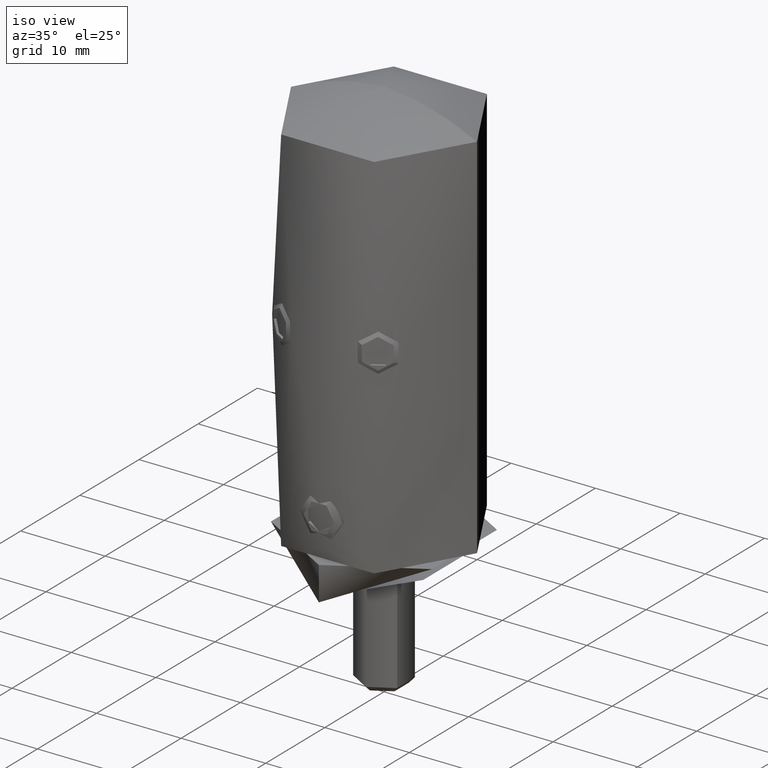
[diagram: clean part render]
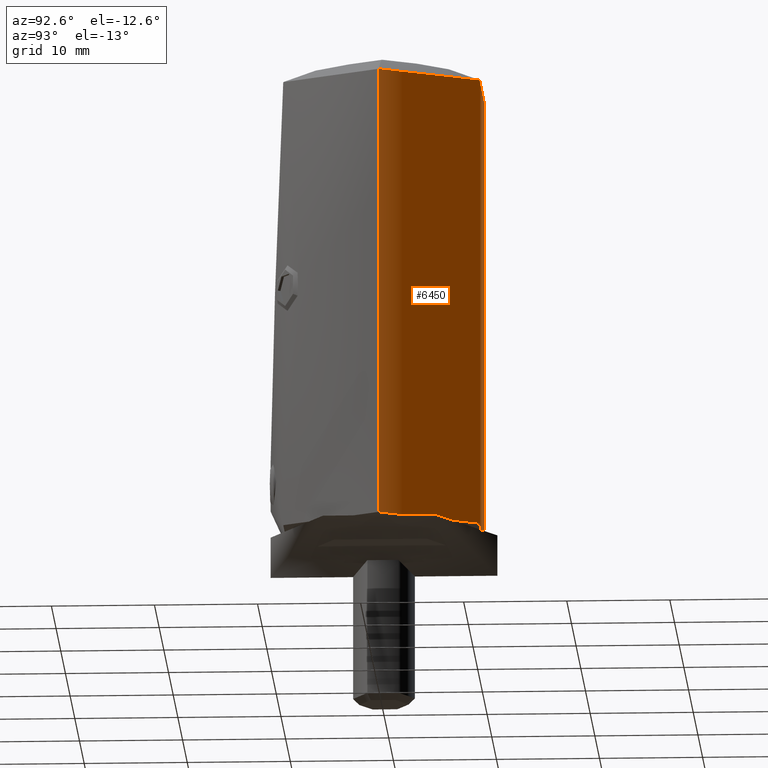
[diagram: tour spotlight — one face highlighted and labeled with its STEP entity id]
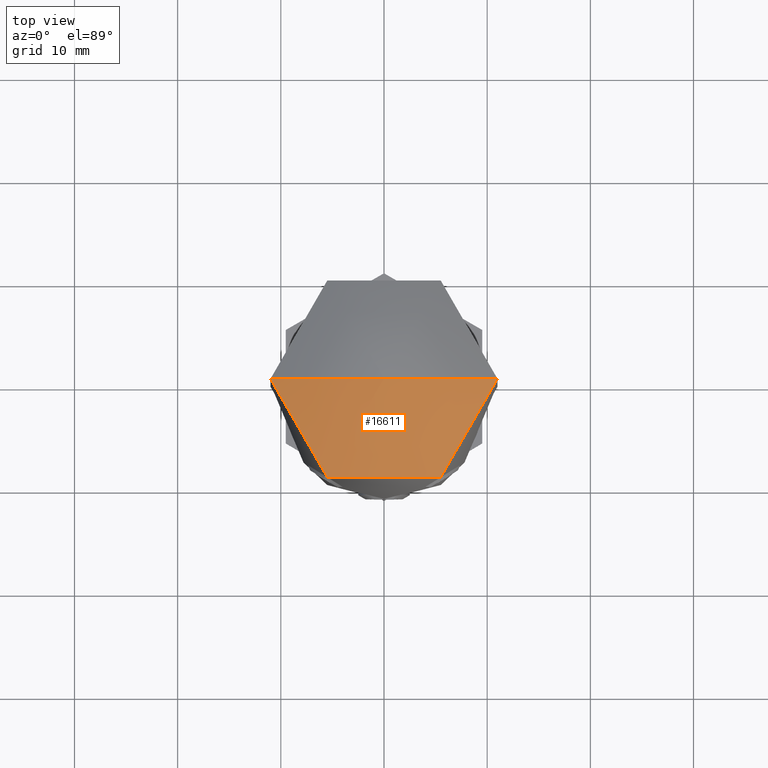
[diagram: tour spotlight — one face highlighted and labeled with its STEP entity id]
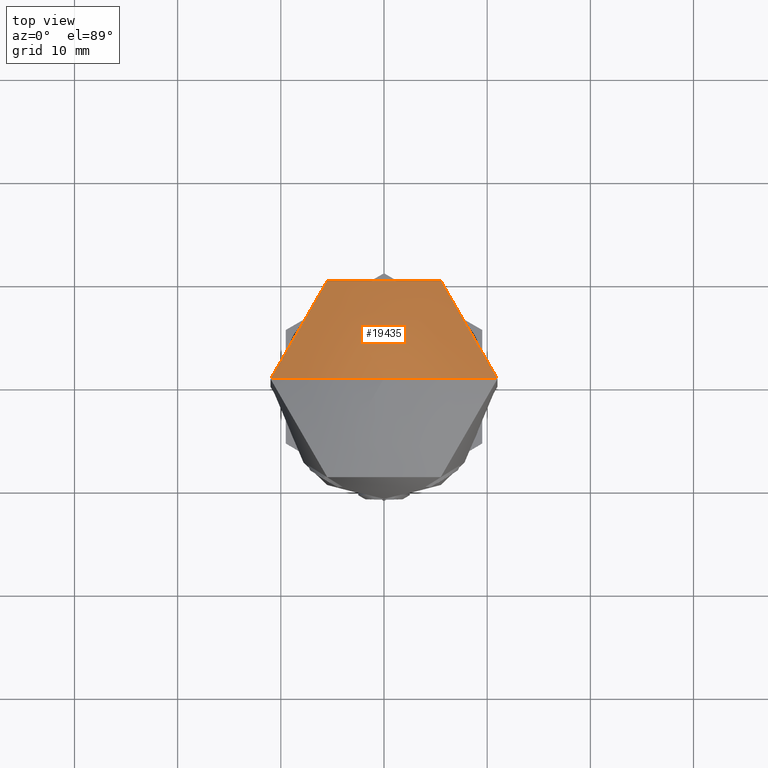
[diagram: tour spotlight — one face highlighted and labeled with its STEP entity id]
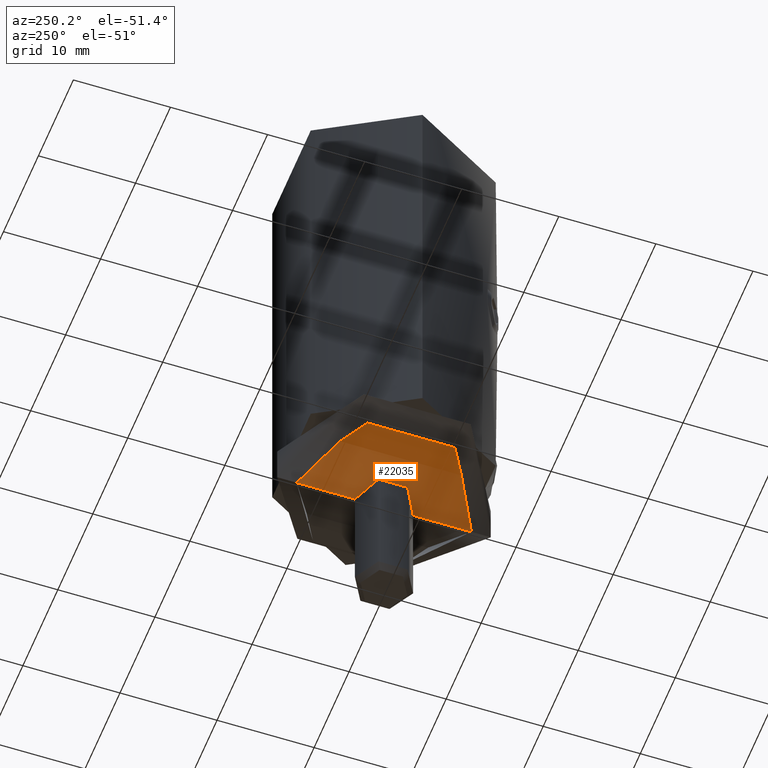
[diagram: tour spotlight — one face highlighted and labeled with its STEP entity id]
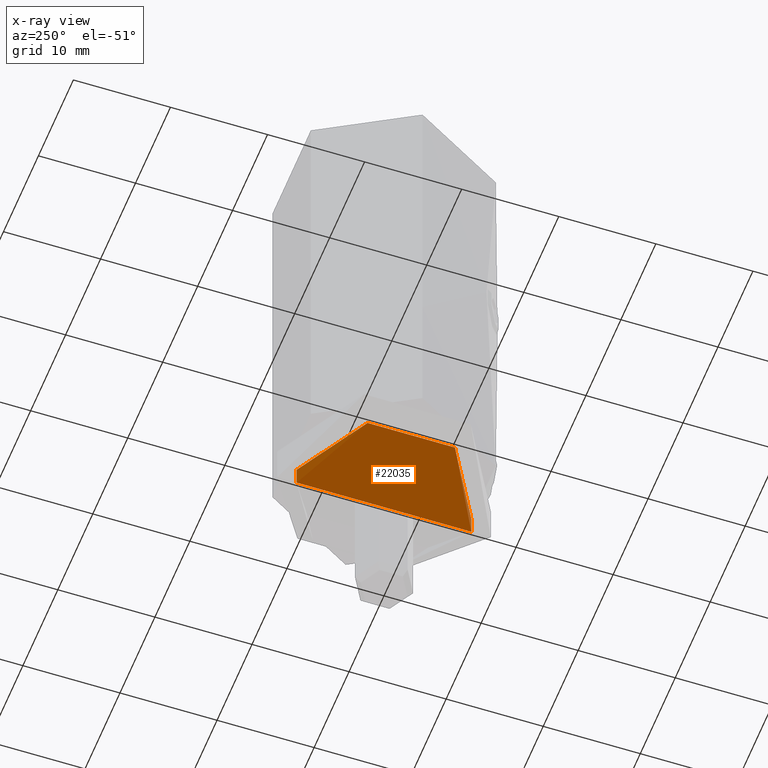
[diagram: x-ray of the same camera — body ghosted, this tour face saturated]
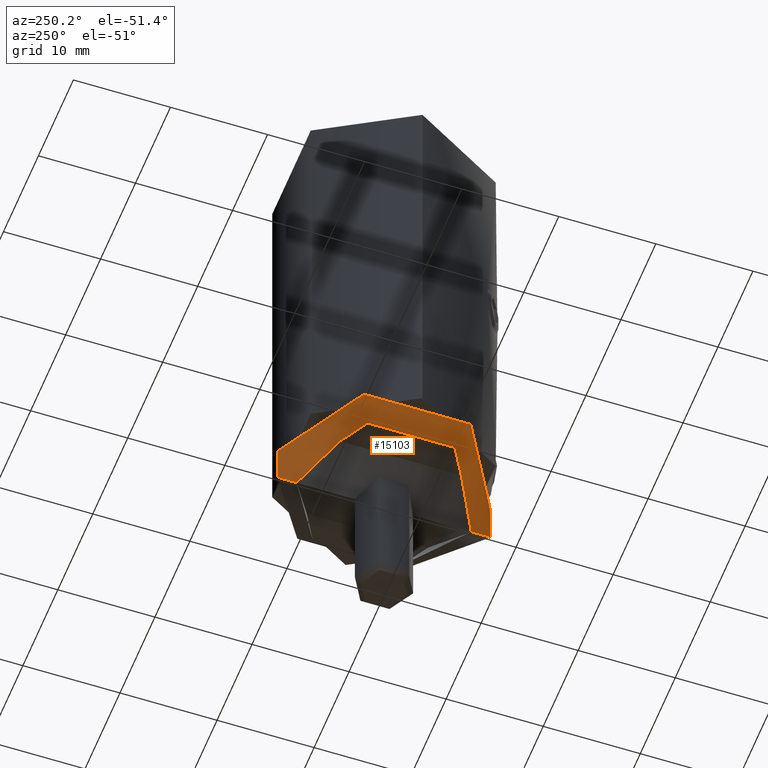
[diagram: tour spotlight — one face highlighted and labeled with its STEP entity id]
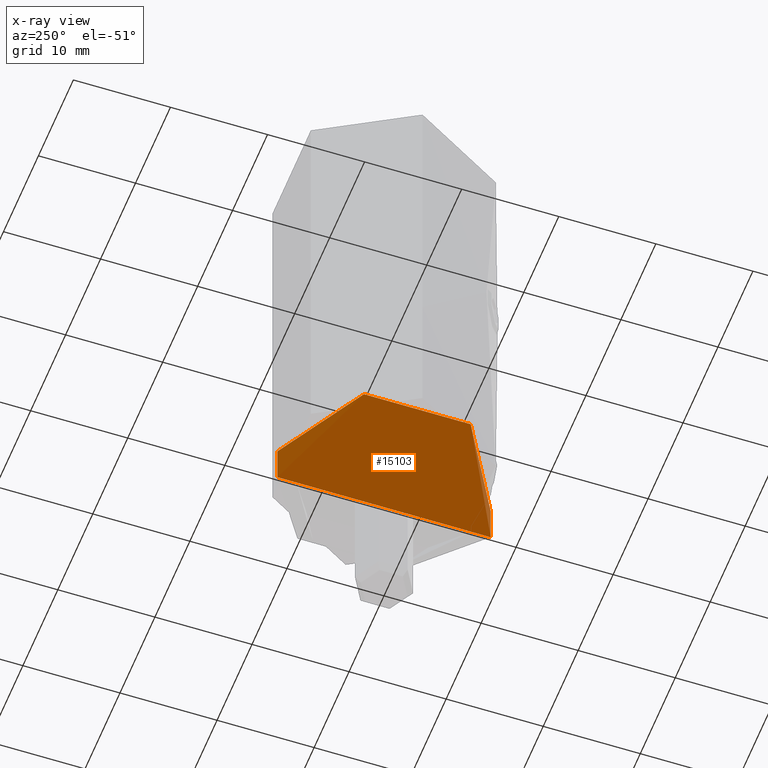
[diagram: x-ray of the same camera — body ghosted, this tour face saturated]
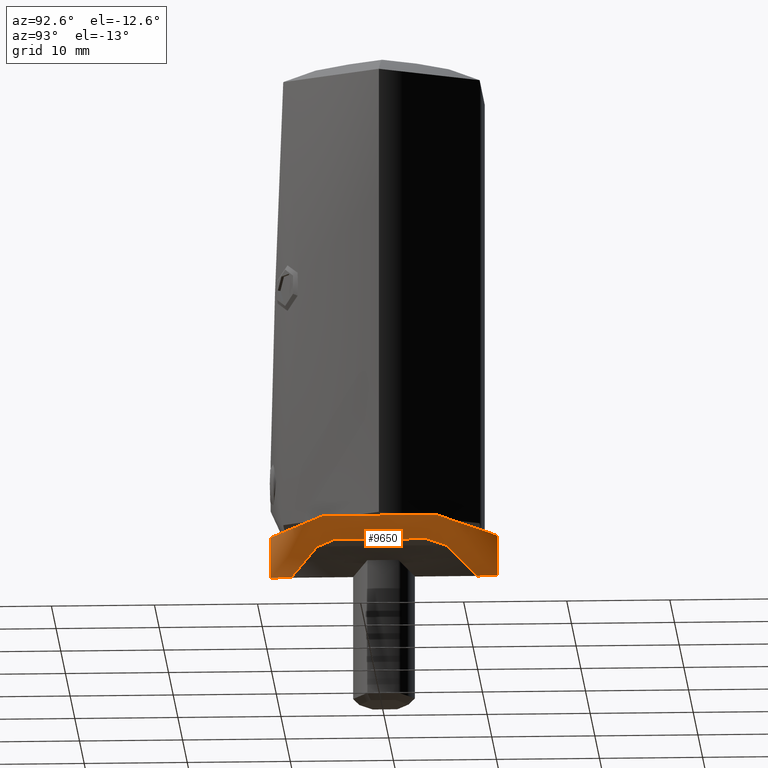
[diagram: tour spotlight — one face highlighted and labeled with its STEP entity id]
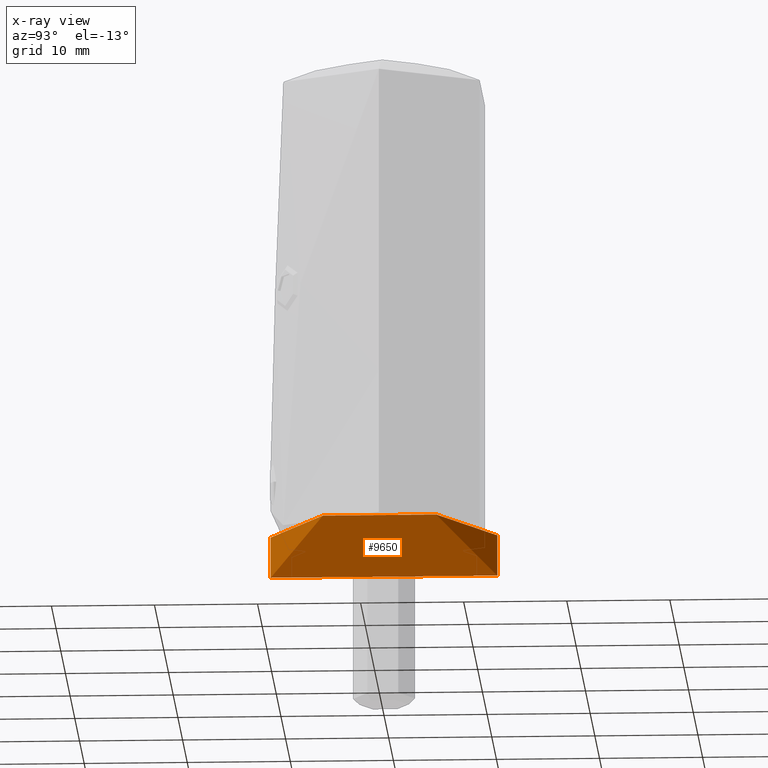
[diagram: x-ray of the same camera — body ghosted, this tour face saturated]
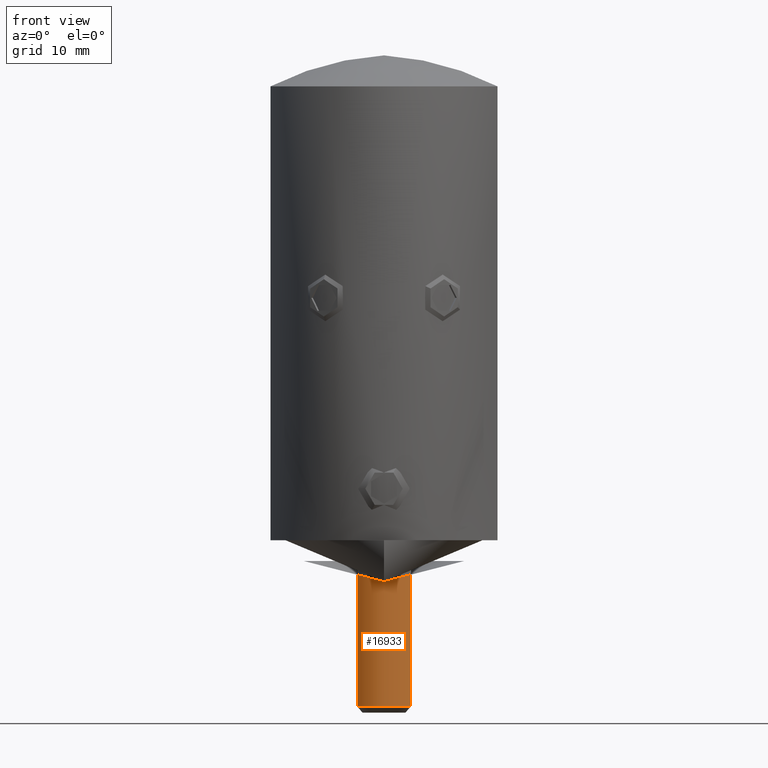
[diagram: tour spotlight — one face highlighted and labeled with its STEP entity id]
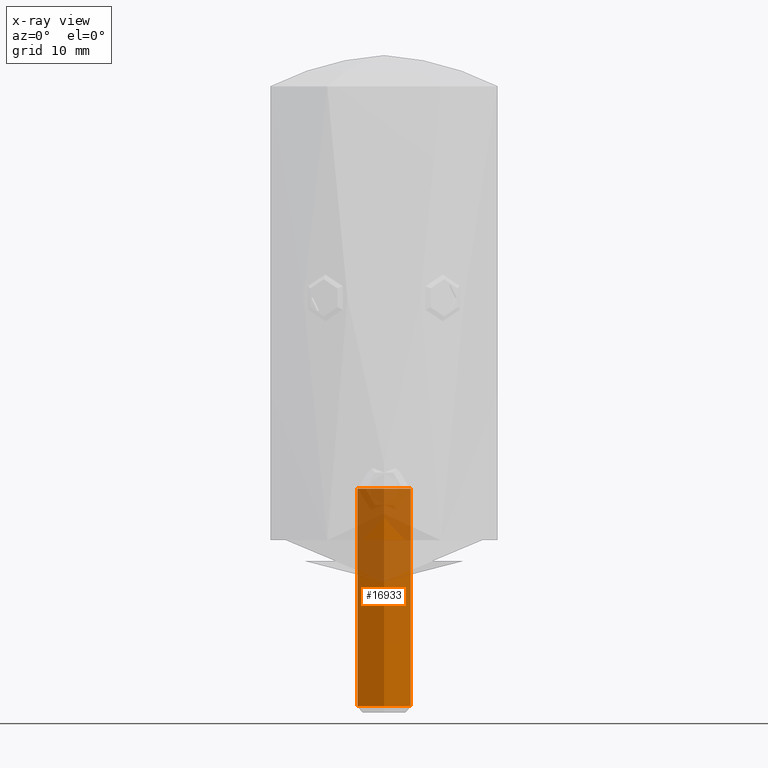
[diagram: x-ray of the same camera — body ghosted, this tour face saturated]
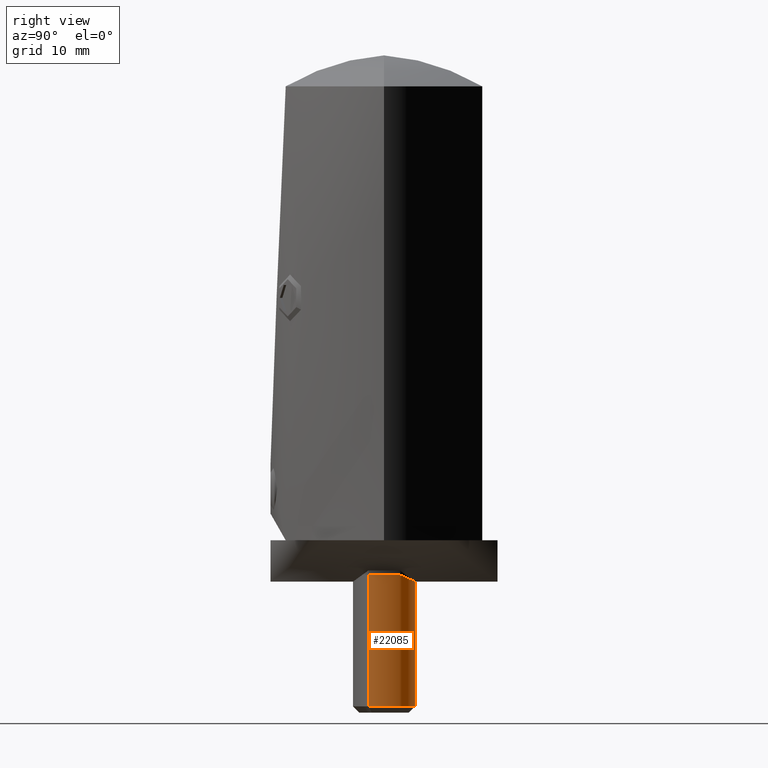
[diagram: tour spotlight — one face highlighted and labeled with its STEP entity id]
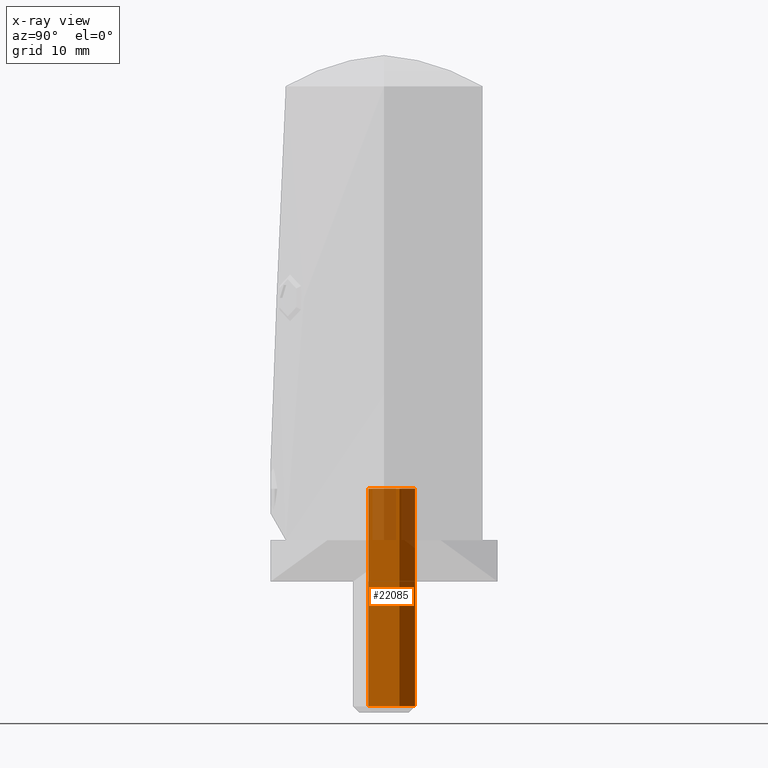
[diagram: x-ray of the same camera — body ghosted, this tour face saturated]
A machine part: a face-by-face anatomy tour. The part has 388 B-rep faces; the first image is the clean iso view, then the 8 largest visible faces are spotlighted one at a time (largest first), each with its STEP entity span.

Face 1 — auxiliary view, entity #6450. In plain terms, the highlighted cylindrical surface (partial cylindrical patch) has radius 11 mm, axis along (0, 0, 1).
Definition (entity closure, byte-faithful):
#122 = VECTOR ( 'NONE', #1411, 1000.000000000000000 ) ;
#185 = CARTESIAN_POINT ( 'NONE',  ( 0.000000000000000000, 0.000000000000000000, 0.000000000000000000 ) ) ;
#583 = AXIS2_PLACEMENT_3D ( 'NONE', #185, #18202, #8185 ) ;
#852 = CARTESIAN_POINT ( 'NONE',  ( 11.00000000000000000, 0.000000000000000000, 0.000000000000000000 ) ) ;
#1027 = EDGE_CURVE ( 'NONE', #9786, #12698, #20899, .T. ) ;
#1116 = LINE ( 'NONE', #7931, #6016 ) ;
#1151 = CARTESIAN_POINT ( 'NONE',  ( 9.276586281824352298, 5.912086988701064527, 26.68991559181272066 ) ) ;
#1221 = CARTESIAN_POINT ( 'NONE',  ( 10.19190643202290403, 4.145583814347573615, 17.23581035534738248 ) ) ;
#1335 = CARTESIAN_POINT ( 'NONE',  ( -10.63235953451128601, 2.826142311900730508, 15.49017556132866424 ) ) ;
#1362 = CARTESIAN_POINT ( 'NONE',  ( 9.169022805507463403, 6.077224059141697943, 23.72744714941844535 ) ) ;
#1411 = DIRECTION ( 'NONE',  ( -0.000000000000000000, -0.000000000000000000, 1.000000000000000000 ) ) ;
#1441 = CARTESIAN_POINT ( 'NONE',  ( 10.93454373632697774, 1.219124606259233801, 14.37928282664537072 ) ) ;
#1457 = LINE ( 'NONE', #18378, #15074 ) ;
#1486 = CARTESIAN_POINT ( 'NONE',  ( -9.995745178423522503, 4.598577528994651331, 18.09011867401516582 ) ) ;
#1555 = CARTESIAN_POINT ( 'NONE',  ( -9.667618367043559147, 5.248993232710271961, 28.51127229857968715 ) ) ;
#2116 = CARTESIAN_POINT ( 'NONE',  ( 0.000000000000000000, 0.000000000000000000, 47.00000000000000000 ) ) ;
#2395 = EDGE_LOOP ( 'NONE', ( #5522, #17896, #3724, #16708, #16062, #20153, #4001, #17229 ) ) ;
#2848 = CARTESIAN_POINT ( 'NONE',  ( -10.93489635769100587, 1.216236221673740125, 14.37801581980705024 ) ) ;
#2855 = CARTESIAN_POINT ( 'NONE',  ( 10.99999999999999645, -1.613032863370915042E-15, 14.14600281952403371 ) ) ;
#2878 = CARTESIAN_POINT ( 'NONE',  ( 9.937150968510632509, 4.720449298127608273, 29.30968321722767556 ) ) ;
#2947 = CARTESIAN_POINT ( 'NONE',  ( 10.68044981376455027, 2.641693695686940568, 30.87581037398781802 ) ) ;
#3040 = EDGE_CURVE ( 'NONE', #16042, #17736, #3161, .T. ) ;
#3065 = CARTESIAN_POINT ( 'NONE',  ( -10.44101067740119504, 3.465226348147305124, 16.22774114665358880 ) ) ;
#3161 = CIRCLE ( 'NONE', #6873, 10.99999999999999289 ) ;
#3279 = CARTESIAN_POINT ( 'NONE',  ( -9.631011627530943642, 5.316813198380812011, 19.89080091663919347 ) ) ;
#3383 = CARTESIAN_POINT ( 'NONE',  ( 10.99999999999999645, -6.157719887952269557E-18, 31.39940828047582144 ) ) ;
#3527 = VERTEX_POINT ( 'NONE', #11686 ) ;
#3724 = ORIENTED_EDGE ( 'NONE', *, *, #14783, .T. ) ;
#4001 = ORIENTED_EDGE ( 'NONE', *, *, #16088, .F. ) ;
#4445 = FACE_OUTER_BOUND ( 'NONE', #2395, .T. ) ;
#4694 = CARTESIAN_POINT ( 'NONE',  ( 10.73363410085024228, 2.417583941322506647, 30.96706970414824056 ) ) ;
#4741 = CARTESIAN_POINT ( 'NONE',  ( -10.99999999999999467, 0.2478373475758859912, 14.14600281952402483 ) ) ;
#4769 = CARTESIAN_POINT ( 'NONE',  ( 10.95879317033269906, 0.9815245868461854872, 14.29267380481936911 ) ) ;
#4791 = EDGE_CURVE ( 'NONE', #9786, #5450, #12141, .T. ) ;
#4817 = CARTESIAN_POINT ( 'NONE',  ( -9.161691856020862446, 6.088012139515935672, 25.21152445994013647 ) ) ;
#4844 = CARTESIAN_POINT ( 'NONE',  ( 9.180302095915839899, 6.060518049954424669, 25.71424540636342826 ) ) ;
#5040 = CARTESIAN_POINT ( 'NONE',  ( -10.93266799829689440, 1.239499988441321365, 31.29412717969402991 ) ) ;
#5108 = CARTESIAN_POINT ( 'NONE',  ( -10.29346247027996597, 3.890323998195837518, 16.81608004023518887 ) ) ;
#5450 = VERTEX_POINT ( 'NONE', #2855 ) ;
#5522 = ORIENTED_EDGE ( 'NONE', *, *, #1027, .T. ) ;
#5668 = AXIS2_PLACEMENT_3D ( 'NONE', #2116, #12445, #17822 ) ;
#6016 = VECTOR ( 'NONE', #7793, 1000.000000000000000 ) ;
#6336 = DIRECTION ( 'NONE',  ( -0.000000000000000000, -0.000000000000000000, 1.000000000000000000 ) ) ;
#6365 = CARTESIAN_POINT ( 'NONE',  ( -10.84032913580385760, 1.878513215223658550, 14.71939697732687868 ) ) ;
#6389 = B_SPLINE_CURVE_WITH_KNOTS ( 'NONE', 3,
 ( #15201, #4741, #16742, #20041, #2848, #15054, #6365, #17175, #18762, #1335, #13626, #8451, #3065, #5108, #10087, #1486, #22457, #18916, #3279, #8534, #6583, #11937, #18836, #15501, #20640, #22171, #4817, #13553, #10236, #22379, #18980, #17249, #12010, #1555, #6724, #13694, #20496, #22238, #11867, #15357, #20569, #20417, #13772, #5040, #10163, #6793, #17036, #20717 ),
 .UNSPECIFIED., .F., .F.,
 ( 4, 2, 2, 2, 2, 2, 2, 2, 2, 2, 2, 2, 2, 2, 2, 2, 2, 2, 2, 2, 2, 2, 2, 4 ),
 ( 0.02373305353298711326, 0.02447535600702940850, 0.02521765848107170721, 0.02595996095511400245, 0.02670226342915629769, 0.02744456590319859293, 0.02818686837724089164, 0.02967147332532548559, 0.03115607827341007607, 0.03264068322149467349, 0.03412528816957926397, 0.03560989311766386139, 0.03709449806574845188, 0.03783680053979075752, 0.03857910301383305623, 0.04006370796191766059, 0.04080601043595996624, 0.04154831291000227189, 0.04303291785808689013, 0.04377522033212920272, 0.04451752280617152224, 0.04600212775425614742, 0.04674443022829846694, 0.04748673270234078647 ),
 .UNSPECIFIED. ) ;
#6396 = CARTESIAN_POINT ( 'NONE',  ( 9.350936937472786425, 5.796166265188768207, 27.17605783751555037 ) ) ;
#6450 = ADVANCED_FACE ( 'NONE', ( #4445 ), #21047, .T. ) ;
#6469 = CARTESIAN_POINT ( 'NONE',  ( 9.865857427622449549, 4.866926039614834387, 29.11769652056424817 ) ) ;
#6583 = CARTESIAN_POINT ( 'NONE',  ( -9.403972630176102854, 5.707726091161572590, 21.29312315735162642 ) ) ;
#6724 = CARTESIAN_POINT ( 'NONE',  ( -9.731269890558166935, 5.130702321242056385, 28.71869723149263720 ) ) ;
#6793 = CARTESIAN_POINT ( 'NONE',  ( -10.99144955070030072, 0.4993093784154168380, 31.38620898365419976 ) ) ;
#6873 = AXIS2_PLACEMENT_3D ( 'NONE', #15093, #6336, #11457 ) ;
#6982 = CARTESIAN_POINT ( 'NONE',  ( 10.99999999999999467, 0.4996091848325773244, 31.39940828047583210 ) ) ;
#7793 = DIRECTION ( 'NONE',  ( -0.000000000000000000, -0.000000000000000000, 1.000000000000000000 ) ) ;
#7862 = CARTESIAN_POINT ( 'NONE',  ( 10.99999999999999645, -6.157719887952269557E-18, 31.39940828047582144 ) ) ;
#7931 = CARTESIAN_POINT ( 'NONE',  ( -10.99999999999999645, 1.347111479062088010E-15, 47.00000000000000000 ) ) ;
#8110 = CARTESIAN_POINT ( 'NONE',  ( 10.15198952329511606, 4.239602061929558907, 29.83253419508602633 ) ) ;
#8185 = DIRECTION ( 'NONE',  ( 1.000000000000000000, 0.000000000000000000, 0.000000000000000000 ) ) ;
#8260 = CARTESIAN_POINT ( 'NONE',  ( 10.72066440796315767, 2.470073037757269940, 15.15924680959760273 ) ) ;
#8451 = CARTESIAN_POINT ( 'NONE',  ( -10.48974706952189884, 3.315559160206889455, 16.03702005913170936 ) ) ;
#8534 = CARTESIAN_POINT ( 'NONE',  ( -9.474578436458164887, 5.590818455961032107, 20.82068631534885839 ) ) ;
#8562 = CARTESIAN_POINT ( 'NONE',  ( 10.96611358357113275, 0.9909392377880402725, 31.34776871340466542 ) ) ;
#9235 = LINE ( 'NONE', #21724, #11732 ) ;
#9252 = DIRECTION ( 'NONE',  ( -0.000000000000000000, -0.000000000000000000, 1.000000000000000000 ) ) ;
#9441 = CARTESIAN_POINT ( 'NONE',  ( 10.99999999999999289, 0.000000000000000000, 44.00000000000000000 ) ) ;
#9786 = VERTEX_POINT ( 'NONE', #852 ) ;
#10050 = CARTESIAN_POINT ( 'NONE',  ( 9.717539187263652067, 5.158495255006235070, 19.42986083207344095 ) ) ;
#10087 = CARTESIAN_POINT ( 'NONE',  ( -10.19334211656566680, 4.142174966946750914, 17.22965697093777848 ) ) ;
#10163 = CARTESIAN_POINT ( 'NONE',  ( -10.95786264964114132, 0.9932367454756317882, 31.33369241825576523 ) ) ;
#10236 = CARTESIAN_POINT ( 'NONE',  ( -9.204154736256592528, 6.023743178888258498, 25.95545286772080473 ) ) ;
#10945 = VERTEX_POINT ( 'NONE', #16275 ) ;
#11457 = DIRECTION ( 'NONE',  ( 1.000000000000000000, 0.000000000000000000, 0.000000000000000000 ) ) ;
#11597 = CARTESIAN_POINT ( 'NONE',  ( 9.268073524593377854, 5.925988443663892546, 22.26015094428595376 ) ) ;
#11674 = CARTESIAN_POINT ( 'NONE',  ( 10.50514627013607694, 3.293040702412898479, 30.56242197320299070 ) ) ;
#11686 = CARTESIAN_POINT ( 'NONE',  ( -10.99999999999999645, -3.162245699594417071E-16, 31.39940828047582499 ) ) ;
#11732 = VECTOR ( 'NONE', #9252, 1000.000000000000000 ) ;
#11748 = CARTESIAN_POINT ( 'NONE',  ( 10.99135156056391693, 0.4987275175918589598, 14.17665587706532904 ) ) ;
#11867 = CARTESIAN_POINT ( 'NONE',  ( -10.36446980822711517, 3.690835795071915282, 30.28533410104591539 ) ) ;
#11937 = CARTESIAN_POINT ( 'NONE',  ( -9.284403859855997254, 5.900227396288968862, 22.25440755240382984 ) ) ;
#12010 = CARTESIAN_POINT ( 'NONE',  ( -9.549267367794355366, 5.461343020376402180, 28.07905642248673672 ) ) ;
#12141 = LINE ( 'NONE', #17038, #122 ) ;
#12445 = DIRECTION ( 'NONE',  ( -0.000000000000000000, -0.000000000000000000, 1.000000000000000000 ) ) ;
#12698 = VERTEX_POINT ( 'NONE', #16909 ) ;
#13353 = CARTESIAN_POINT ( 'NONE',  ( 9.544125100363125114, 5.472224506626518270, 28.08691088914872580 ) ) ;
#13553 = CARTESIAN_POINT ( 'NONE',  ( -9.186107045077074318, 6.051109553789102868, 25.70755485461112144 ) ) ;
#13586 = CARTESIAN_POINT ( 'NONE',  ( 9.156828884951636383, 6.095285974169083687, 25.22073771479018944 ) ) ;
#13626 = CARTESIAN_POINT ( 'NONE',  ( -10.58529593870019347, 2.996537337913917298, 15.66869850762098793 ) ) ;
#13655 = CARTESIAN_POINT ( 'NONE',  ( 10.76330588298242574, 2.278899339915497091, 15.00158083274270027 ) ) ;
#13694 = CARTESIAN_POINT ( 'NONE',  ( -9.932215519004348181, 4.736873953609047838, 29.31442865162007294 ) ) ;
#13772 = CARTESIAN_POINT ( 'NONE',  ( -10.83404395048749436, 1.965159232283680835, 31.13583830291022991 ) ) ;
#14749 = VERTEX_POINT ( 'NONE', #7862 ) ;
#14783 = EDGE_CURVE ( 'NONE', #10945, #3527, #6389, .T. ) ;
#15011 = CARTESIAN_POINT ( 'NONE',  ( 10.87562171476231576, 1.664741374695971610, 14.59151728989580654 ) ) ;
#15054 = CARTESIAN_POINT ( 'NONE',  ( -10.87563798187002284, 1.664838547025349724, 14.59145559646123580 ) ) ;
#15074 = VECTOR ( 'NONE', #20241, 1000.000000000000000 ) ;
#15093 = CARTESIAN_POINT ( 'NONE',  ( 0.000000000000000000, 0.000000000000000000, 44.00000000000000000 ) ) ;
#15157 = CARTESIAN_POINT ( 'NONE',  ( 9.151137685892113183, 6.103827110021398994, 24.22474507590730397 ) ) ;
#15201 = CARTESIAN_POINT ( 'NONE',  ( -10.99999999999999645, 1.347129800413888000E-15, 14.14600281952402128 ) ) ;
#15306 = CARTESIAN_POINT ( 'NONE',  ( 10.58764482631107207, 3.006227149099427010, 15.65777086294794351 ) ) ;
#15357 = CARTESIAN_POINT ( 'NONE',  ( -10.49836223799335500, 3.290728428738955991, 30.54629163360949562 ) ) ;
#15501 = CARTESIAN_POINT ( 'NONE',  ( -9.168876221615319011, 6.077448697450545723, 23.72940678532436820 ) ) ;
#16042 = VERTEX_POINT ( 'NONE', #9441 ) ;
#16062 = ORIENTED_EDGE ( 'NONE', *, *, #3040, .F. ) ;
#16088 = EDGE_CURVE ( 'NONE', #5450, #14749, #20363, .T. ) ;
#16149 = CARTESIAN_POINT ( 'NONE',  ( -10.99999999999999289, 1.347111479062087813E-15, 44.00000000000000000 ) ) ;
#16275 = CARTESIAN_POINT ( 'NONE',  ( -10.99999999999999645, 1.347129800413888000E-15, 14.14600281952402128 ) ) ;
#16708 = ORIENTED_EDGE ( 'NONE', *, *, #20671, .T. ) ;
#16742 = CARTESIAN_POINT ( 'NONE',  ( -10.99147959650918871, 0.4968182983868865699, 14.17619965528579939 ) ) ;
#16838 = CARTESIAN_POINT ( 'NONE',  ( 10.07994095445507021, 4.407312253728412621, 29.66625309635145058 ) ) ;
#16909 = CARTESIAN_POINT ( 'NONE',  ( -10.99999999999999822, 1.347111479062088405E-15, 0.000000000000000000 ) ) ;
#16912 = CARTESIAN_POINT ( 'NONE',  ( 10.29255199365515416, 3.892950636535780440, 16.81970916114861581 ) ) ;
#17036 = CARTESIAN_POINT ( 'NONE',  ( -10.99999999999999645, 0.2509467634706121220, 31.39940828047583210 ) ) ;
#17038 = CARTESIAN_POINT ( 'NONE',  ( 10.99999999999999645, 0.000000000000000000, 47.00000000000000000 ) ) ;
#17127 = EDGE_CURVE ( 'NONE', #14749, #16042, #1457, .T. ) ;
#17175 = CARTESIAN_POINT ( 'NONE',  ( -10.76329257720631993, 2.278833159707701395, 15.00163588483660959 ) ) ;
#17200 = CARTESIAN_POINT ( 'NONE',  ( 10.86813653608445662, 1.715520375343549730, 31.19057438597665310 ) ) ;
#17229 = ORIENTED_EDGE ( 'NONE', *, *, #4791, .F. ) ;
#17249 = CARTESIAN_POINT ( 'NONE',  ( -9.494267281368074407, 5.555888141879220754, 27.85268047994897955 ) ) ;
#17736 = VERTEX_POINT ( 'NONE', #16149 ) ;
#17822 = DIRECTION ( 'NONE',  ( 1.000000000000000000, 0.000000000000000000, 0.000000000000000000 ) ) ;
#17896 = ORIENTED_EDGE ( 'NONE', *, *, #22293, .T. ) ;
#18202 = DIRECTION ( 'NONE',  ( -0.000000000000000000, -0.000000000000000000, 1.000000000000000000 ) ) ;
#18378 = CARTESIAN_POINT ( 'NONE',  ( 10.99999999999999645, 0.000000000000000000, 47.00000000000000000 ) ) ;
#18497 = CARTESIAN_POINT ( 'NONE',  ( 10.49113112059434982, 3.320822038456111347, 16.02789048010664530 ) ) ;
#18567 = CARTESIAN_POINT ( 'NONE',  ( 9.393611147796804062, 5.732497373815459873, 21.30308717665215923 ) ) ;
#18645 = CARTESIAN_POINT ( 'NONE',  ( 10.82738350603336563, 1.955346398353033921, 31.12430862439548918 ) ) ;
#18719 = CARTESIAN_POINT ( 'NONE',  ( 10.84083531602275663, 1.875746620144942201, 14.71754883050564189 ) ) ;
#18762 = CARTESIAN_POINT ( 'NONE',  ( -10.72128936084500062, 2.467408373022290657, 15.15692060340580127 ) ) ;
#18790 = CARTESIAN_POINT ( 'NONE',  ( 10.99999999999999645, 0.2522254579425809440, 14.14600281952403904 ) ) ;
#18836 = CARTESIAN_POINT ( 'NONE',  ( -9.235293332214252970, 5.976038060906658345, 22.74595518137968142 ) ) ;
#18916 = CARTESIAN_POINT ( 'NONE',  ( -9.716873937847539722, 5.159730167714408289, 19.43335368709922406 ) ) ;
#18980 = CARTESIAN_POINT ( 'NONE',  ( -9.348376104478699489, 5.800334579119827971, 27.16225045274014605 ) ) ;
#20041 = CARTESIAN_POINT ( 'NONE',  ( -10.95866947143712267, 0.9833694920435214204, 14.29311457204376445 ) ) ;
#20153 = ORIENTED_EDGE ( 'NONE', *, *, #17127, .F. ) ;
#20241 = DIRECTION ( 'NONE',  ( -0.000000000000000000, -0.000000000000000000, 1.000000000000000000 ) ) ;
#20295 = CARTESIAN_POINT ( 'NONE',  ( 9.663109020658437132, 5.264292116124045684, 28.51663337380039209 ) ) ;
#20363 = B_SPLINE_CURVE_WITH_KNOTS ( 'NONE', 3,
 ( #22121, #18790, #11748, #4769, #1441, #15011, #18719, #13655, #8260, #15306, #18497, #16912, #1221, #21977, #20446, #10050, #22199, #18567, #11597, #1362, #15157, #13586, #4844, #1151, #6396, #13353, #20295, #6469, #2878, #16838, #8110, #22046, #11674, #2947, #4694, #18645, #17200, #8562, #6982, #3383 ),
 .UNSPECIFIED., .F., .F.,
 ( 4, 2, 2, 2, 2, 2, 2, 2, 2, 2, 2, 2, 2, 2, 2, 2, 2, 2, 2, 4 ),
 ( 2.725574318653533648E-18, 0.0007447471617333670723, 0.001489494323466731543, 0.002234241485200095471, 0.002978988646933459182, 0.004468482970400185737, 0.005957977293866912293, 0.007447471617333638848, 0.008936965940800368005, 0.01191595458773381071, 0.01340544891120052685, 0.01489494323466724300, 0.01638443755813395741, 0.01787393188160067356, 0.01861867904333403337, 0.01936342620506739665, 0.02085292052853410932, 0.02159766769026746566, 0.02234241485200082200, 0.02383190917546753468 ),
 .UNSPECIFIED. ) ;
#20417 = CARTESIAN_POINT ( 'NONE',  ( -10.73887330626719283, 2.424918566267712183, 30.98029733385235929 ) ) ;
#20446 = CARTESIAN_POINT ( 'NONE',  ( 9.900029114979913558, 4.798964958663129110, 18.52913187219744628 ) ) ;
#20496 = CARTESIAN_POINT ( 'NONE',  ( -10.08132311885423249, 4.417631596342759259, 29.67884288206355947 ) ) ;
#20569 = CARTESIAN_POINT ( 'NONE',  ( -10.56284459901602801, 3.078509617056579106, 30.66554663098796496 ) ) ;
#20640 = CARTESIAN_POINT ( 'NONE',  ( -9.151289692457538649, 6.103598936795920693, 24.22232724683069449 ) ) ;
#20671 = EDGE_CURVE ( 'NONE', #3527, #17736, #1116, .T. ) ;
#20717 = CARTESIAN_POINT ( 'NONE',  ( -10.99999999999999645, -3.162245699594417071E-16, 31.39940828047582499 ) ) ;
#20899 = CIRCLE ( 'NONE', #583, 11.00000000000000000 ) ;
#21047 = CYLINDRICAL_SURFACE ( 'NONE', #5668, 10.99999999999999645 ) ;
#21724 = CARTESIAN_POINT ( 'NONE',  ( -10.99999999999999645, 1.347111479062088010E-15, 47.00000000000000000 ) ) ;
#21977 = CARTESIAN_POINT ( 'NONE',  ( 9.995870164935316993, 4.598195464162692758, 18.08967355615866524 ) ) ;
#22046 = CARTESIAN_POINT ( 'NONE',  ( 10.36534291987990564, 3.702449709549178625, 30.29679491970536986 ) ) ;
#22121 = CARTESIAN_POINT ( 'NONE',  ( 10.99999999999999645, -1.613032863370915042E-15, 14.14600281952403371 ) ) ;
#22171 = CARTESIAN_POINT ( 'NONE',  ( -9.155280128689613051, 6.097610312192392357, 24.96394364841832214 ) ) ;
#22199 = CARTESIAN_POINT ( 'NONE',  ( 9.630588175924495786, 5.317624988652980278, 19.89277070153648097 ) ) ;
#22238 = CARTESIAN_POINT ( 'NONE',  ( -10.29467248690630399, 3.880316298225181537, 30.14297462133594863 ) ) ;
#22293 = EDGE_CURVE ( 'NONE', #12698, #10945, #9235, .T. ) ;
#22379 = CARTESIAN_POINT ( 'NONE',  ( -9.276186270179692883, 5.912711176572030602, 26.68684742779497299 ) ) ;
#22457 = CARTESIAN_POINT ( 'NONE',  ( -9.899005222555111061, 4.801057188939707565, 18.53397817063657271 ) ) ;

Face 2 — top view, entity #16611. In plain terms, the highlighted toroidal blend (fillet) surface has major radius 1.713 mm and minor (blend) radius 28 mm.
Definition (entity closure, byte-faithful):
#386 = CIRCLE ( 'NONE', #3142, 28.00000000000000000 ) ;
#2006 = ORIENTED_EDGE ( 'NONE', *, *, #11850, .T. ) ;
#2166 = CARTESIAN_POINT ( 'NONE',  ( 0.000000000000000000, 0.000000000000000000, 19.05244667416139137 ) ) ;
#3142 = AXIS2_PLACEMENT_3D ( 'NONE', #22462, #13777, #17472 ) ;
#3598 = EDGE_CURVE ( 'NONE', #17736, #16042, #21372, .T. ) ;
#3788 = ORIENTED_EDGE ( 'NONE', *, *, #3598, .T. ) ;
#4755 = AXIS2_PLACEMENT_3D ( 'NONE', #20466, #13606, #11301 ) ;
#7647 = DIRECTION ( 'NONE',  ( 1.000000000000000000, 0.000000000000000000, 0.000000000000000000 ) ) ;
#8109 = EDGE_LOOP ( 'NONE', ( #11759, #3788, #2006 ) ) ;
#9178 = DIRECTION ( 'NONE',  ( -0.000000000000000000, -0.000000000000000000, 1.000000000000000000 ) ) ;
#9441 = CARTESIAN_POINT ( 'NONE',  ( 10.99999999999999289, 0.000000000000000000, 44.00000000000000000 ) ) ;
#10275 = CIRCLE ( 'NONE', #4755, 28.00000000000000000 ) ;
#10706 = DIRECTION ( 'NONE',  ( -0.000000000000000000, -0.000000000000000000, 1.000000000000000000 ) ) ;
#10982 = VERTEX_POINT ( 'NONE', #18389 ) ;
#11301 = DIRECTION ( 'NONE',  ( 0.000000000000000000, 0.000000000000000000, -1.000000000000000000 ) ) ;
#11759 = ORIENTED_EDGE ( 'NONE', *, *, #16803, .F. ) ;
#11850 = EDGE_CURVE ( 'NONE', #16042, #10982, #10275, .T. ) ;
#12483 = CARTESIAN_POINT ( 'NONE',  ( 0.000000000000000000, 0.000000000000000000, 44.00000000000000000 ) ) ;
#12709 = DIRECTION ( 'NONE',  ( 1.000000000000000000, 0.000000000000000000, 0.000000000000000000 ) ) ;
#13606 = DIRECTION ( 'NONE',  ( 0.000000000000000000, -1.000000000000000000, 0.000000000000000000 ) ) ;
#13777 = DIRECTION ( 'NONE',  ( 1.224646799147353207E-16, 1.000000000000000000, 0.000000000000000000 ) ) ;
#16042 = VERTEX_POINT ( 'NONE', #9441 ) ;
#16149 = CARTESIAN_POINT ( 'NONE',  ( -10.99999999999999289, 1.347111479062087813E-15, 44.00000000000000000 ) ) ;
#16611 = ADVANCED_FACE ( 'NONE', ( #18905 ), #19155, .T. ) ;
#16803 = EDGE_CURVE ( 'NONE', #17736, #10982, #386, .T. ) ;
#17472 = DIRECTION ( 'NONE',  ( -1.000000000000000000, 1.224646799147353207E-16, 0.000000000000000000 ) ) ;
#17736 = VERTEX_POINT ( 'NONE', #16149 ) ;
#18389 = CARTESIAN_POINT ( 'NONE',  ( 0.000000000000000000, 0.000000000000000000, 47.00000000000000000 ) ) ;
#18552 = AXIS2_PLACEMENT_3D ( 'NONE', #12483, #10706, #12709 ) ;
#18766 = AXIS2_PLACEMENT_3D ( 'NONE', #2166, #9178, #7647 ) ;
#18905 = FACE_OUTER_BOUND ( 'NONE', #8109, .T. ) ;
#19155 = TOROIDAL_SURFACE ( 'NONE', #18766, -1.712969088865089695, 28.00000000000000000 ) ;
#20466 = CARTESIAN_POINT ( 'NONE',  ( -1.712969088865089695, 0.000000000000000000, 19.05244667416139137 ) ) ;
#21372 = CIRCLE ( 'NONE', #18552, 10.99999999999999289 ) ;
#22462 = CARTESIAN_POINT ( 'NONE',  ( 1.712969088865089695, -2.097782111716990278E-16, 19.05244667416139137 ) ) ;

Face 3 — top view, entity #19435. In plain terms, the highlighted toroidal blend (fillet) surface has major radius 1.713 mm and minor (blend) radius 28 mm.
Definition (entity closure, byte-faithful):
#249 = ORIENTED_EDGE ( 'NONE', *, *, #3040, .T. ) ;
#386 = CIRCLE ( 'NONE', #3142, 28.00000000000000000 ) ;
#3040 = EDGE_CURVE ( 'NONE', #16042, #17736, #3161, .T. ) ;
#3142 = AXIS2_PLACEMENT_3D ( 'NONE', #22462, #13777, #17472 ) ;
#3161 = CIRCLE ( 'NONE', #6873, 10.99999999999999289 ) ;
#3679 = DIRECTION ( 'NONE',  ( 1.000000000000000000, 0.000000000000000000, 0.000000000000000000 ) ) ;
#4755 = AXIS2_PLACEMENT_3D ( 'NONE', #20466, #13606, #11301 ) ;
#5220 = FACE_OUTER_BOUND ( 'NONE', #15315, .T. ) ;
#6336 = DIRECTION ( 'NONE',  ( -0.000000000000000000, -0.000000000000000000, 1.000000000000000000 ) ) ;
#6873 = AXIS2_PLACEMENT_3D ( 'NONE', #15093, #6336, #11457 ) ;
#7297 = ORIENTED_EDGE ( 'NONE', *, *, #11850, .F. ) ;
#9441 = CARTESIAN_POINT ( 'NONE',  ( 10.99999999999999289, 0.000000000000000000, 44.00000000000000000 ) ) ;
#9463 = AXIS2_PLACEMENT_3D ( 'NONE', #19249, #14191, #3679 ) ;
#10275 = CIRCLE ( 'NONE', #4755, 28.00000000000000000 ) ;
#10982 = VERTEX_POINT ( 'NONE', #18389 ) ;
#11301 = DIRECTION ( 'NONE',  ( 0.000000000000000000, 0.000000000000000000, -1.000000000000000000 ) ) ;
#11457 = DIRECTION ( 'NONE',  ( 1.000000000000000000, 0.000000000000000000, 0.000000000000000000 ) ) ;
#11850 = EDGE_CURVE ( 'NONE', #16042, #10982, #10275, .T. ) ;
#13606 = DIRECTION ( 'NONE',  ( 0.000000000000000000, -1.000000000000000000, 0.000000000000000000 ) ) ;
#13777 = DIRECTION ( 'NONE',  ( 1.224646799147353207E-16, 1.000000000000000000, 0.000000000000000000 ) ) ;
#14191 = DIRECTION ( 'NONE',  ( -0.000000000000000000, -0.000000000000000000, 1.000000000000000000 ) ) ;
#14517 = TOROIDAL_SURFACE ( 'NONE', #9463, -1.712969088865089695, 28.00000000000000000 ) ;
#15093 = CARTESIAN_POINT ( 'NONE',  ( 0.000000000000000000, 0.000000000000000000, 44.00000000000000000 ) ) ;
#15315 = EDGE_LOOP ( 'NONE', ( #249, #18105, #7297 ) ) ;
#16042 = VERTEX_POINT ( 'NONE', #9441 ) ;
#16149 = CARTESIAN_POINT ( 'NONE',  ( -10.99999999999999289, 1.347111479062087813E-15, 44.00000000000000000 ) ) ;
#16803 = EDGE_CURVE ( 'NONE', #17736, #10982, #386, .T. ) ;
#17472 = DIRECTION ( 'NONE',  ( -1.000000000000000000, 1.224646799147353207E-16, 0.000000000000000000 ) ) ;
#17736 = VERTEX_POINT ( 'NONE', #16149 ) ;
#18105 = ORIENTED_EDGE ( 'NONE', *, *, #16803, .T. ) ;
#18389 = CARTESIAN_POINT ( 'NONE',  ( 0.000000000000000000, 0.000000000000000000, 47.00000000000000000 ) ) ;
#19249 = CARTESIAN_POINT ( 'NONE',  ( 0.000000000000000000, 0.000000000000000000, 19.05244667416139137 ) ) ;
#19435 = ADVANCED_FACE ( 'NONE', ( #5220 ), #14517, .T. ) ;
#20466 = CARTESIAN_POINT ( 'NONE',  ( -1.712969088865089695, 0.000000000000000000, 19.05244667416139137 ) ) ;
#22462 = CARTESIAN_POINT ( 'NONE',  ( 1.712969088865089695, -2.097782111716990278E-16, 19.05244667416139137 ) ) ;

Face 4 — auxiliary view, entity #22035. An x-ray twin of the same camera follows (body ghosted, this face saturated) — the face is partly hidden behind the body. In plain terms, the highlighted cylindrical surface (partial cylindrical patch) has radius 9 mm, axis along (0, 0, -1).
Definition (entity closure, byte-faithful):
#277 = CARTESIAN_POINT ( 'NONE',  ( -1.185945749614567779, -8.941669071172402283, -0.02496988984096158368 ) ) ;
#340 = VERTEX_POINT ( 'NONE', #20653 ) ;
#727 = CARTESIAN_POINT ( 'NONE',  ( 1.102182119232617714E-15, -9.000000000000000000, 1.999999999999997113 ) ) ;
#729 = CARTESIAN_POINT ( 'NONE',  ( -0.6023680047795310077, 9.000000000000001776, 6.935294013881395235E-15 ) ) ;
#754 = CARTESIAN_POINT ( 'NONE',  ( -3.736670627740366513, -8.192869673815868836, -0.3301080335937547905 ) ) ;
#780 = VECTOR ( 'NONE', #18650, 1000.000000000000000 ) ;
#806 = CARTESIAN_POINT ( 'NONE',  ( -8.926111635704424785, -1.189302625270157510, -1.970709750180470898 ) ) ;
#1293 = CARTESIAN_POINT ( 'NONE',  ( 0.000000000000000000, -2.449293598294700991E-16, 1.999999999999998224 ) ) ;
#2015 = CARTESIAN_POINT ( 'NONE',  ( -0.5933890720346648440, -9.000000000000001776, -2.885182447891981069E-15 ) ) ;
#2447 = FACE_OUTER_BOUND ( 'NONE', #8072, .T. ) ;
#2458 = CARTESIAN_POINT ( 'NONE',  ( -7.803510929205667246, 4.522188408825448924, -1.485353026589256942 ) ) ;
#2693 = CARTESIAN_POINT ( 'NONE',  ( -6.163763077976561533, 6.564455524836762201, -0.9146813748702021796 ) ) ;
#3242 = VERTEX_POINT ( 'NONE', #10552 ) ;
#3492 = CARTESIAN_POINT ( 'NONE',  ( -4.773436371815509283, -7.635452310474522442, -0.5428710946691450712 ) ) ;
#3873 = EDGE_CURVE ( 'NONE', #340, #8956, #7770, .T. ) ;
#4118 = CARTESIAN_POINT ( 'NONE',  ( -4.531352901498308938, 7.798104117224855969, -0.4838789241247356543 ) ) ;
#4267 = CARTESIAN_POINT ( 'NONE',  ( -8.691438267407118445, 2.355182090629235780, -1.863300288605564736 ) ) ;
#4317 = DIRECTION ( 'NONE',  ( -0.000000000000000000, 1.224646799147353700E-16, -1.000000000000000000 ) ) ;
#4364 = EDGE_CURVE ( 'NONE', #340, #10605, #10504, .T. ) ;
#5524 = CARTESIAN_POINT ( 'NONE',  ( 1.102158473109589528E-15, -9.000000000000000000, -1.861935857233098374E-15 ) ) ;
#5970 = CARTESIAN_POINT ( 'NONE',  ( -2.351102510118274758, 8.692581125495628669, -0.1288197862251598269 ) ) ;
#6052 = CARTESIAN_POINT ( 'NONE',  ( -8.881823224659212812, -1.483538835291113633, -1.950134147624569936 ) ) ;
#6136 = CARTESIAN_POINT ( 'NONE',  ( -6.573466969556618800, 6.154151738390522652, -1.043719117738682201 ) ) ;
#6214 = CARTESIAN_POINT ( 'NONE',  ( -7.313069460956389989, 5.254070590124753082, -1.300514150201308006 ) ) ;
#7033 = LINE ( 'NONE', #20226, #780 ) ;
#7109 = ORIENTED_EDGE ( 'NONE', *, *, #4364, .F. ) ;
#7710 = CARTESIAN_POINT ( 'NONE',  ( -8.079162393224692096, 4.008667575377398151, -1.598285831224369069 ) ) ;
#7770 = LINE ( 'NONE', #727, #14347 ) ;
#7855 = CARTESIAN_POINT ( 'NONE',  ( -2.920474601856163588, 8.518185119866810595, -0.2001631741012364629 ) ) ;
#8072 = EDGE_LOOP ( 'NONE', ( #7109, #22041, #18056, #17015 ) ) ;
#8113 = DIRECTION ( 'NONE',  ( -0.000000000000000000, 1.224646799147353700E-16, -1.000000000000000000 ) ) ;
#8267 = DIRECTION ( 'NONE',  ( 0.000000000000000000, 1.000000000000000000, 1.445602896647339163E-16 ) ) ;
#8956 = VERTEX_POINT ( 'NONE', #19728 ) ;
#9317 = CARTESIAN_POINT ( 'NONE',  ( -8.076187423238078367, -4.015848512649691671, -1.597017394166106552 ) ) ;
#9394 = CARTESIAN_POINT ( 'NONE',  ( -1.193336431064578207, 8.940146670528566375, -0.02560525405433383000 ) ) ;
#9479 = CARTESIAN_POINT ( 'NONE',  ( -8.517504256587191236, 2.922345474988994329, -1.786057172129882131 ) ) ;
#9635 = CARTESIAN_POINT ( 'NONE',  ( -9.000197485660867969, -0.2915881291376433704, -2.005301636450298464 ) ) ;
#9915 = EDGE_CURVE ( 'NONE', #10605, #3242, #7033, .T. ) ;
#10504 = CIRCLE ( 'NONE', #17824, 9.000000000000000000 ) ;
#10552 = CARTESIAN_POINT ( 'NONE',  ( -2.400543471972580931E-16, 9.000000000000000000, 0.000000000000000000 ) ) ;
#10605 = VERTEX_POINT ( 'NONE', #15515 ) ;
#10720 = CARTESIAN_POINT ( 'NONE',  ( -2.362258398571401408, -8.705150679785438328, -0.1237550131540357951 ) ) ;
#11059 = CARTESIAN_POINT ( 'NONE',  ( -7.149048956074048888, -5.498262348091527585, -1.238749106385901744 ) ) ;
#11176 = CARTESIAN_POINT ( 'NONE',  ( -4.016827951074800396, 8.075423365992348224, -0.3767224930350374645 ) ) ;
#11252 = CARTESIAN_POINT ( 'NONE',  ( -8.985476887790625256, -0.5925493789659652677, -1.998378257453282458 ) ) ;
#11325 = CARTESIAN_POINT ( 'NONE',  ( -5.261251621140062618, 7.307881232908766123, -0.6616958035452444875 ) ) ;
#11864 = CARTESIAN_POINT ( 'NONE',  ( -5.503122217084853496, -7.145554771257092597, -0.7205878137888389601 ) ) ;
#12331 = AXIS2_PLACEMENT_3D ( 'NONE', #1293, #8113, #8267 ) ;
#12923 = DIRECTION ( 'NONE',  ( -0.000000000000000000, 1.224646799147353700E-16, -1.000000000000000000 ) ) ;
#12925 = CARTESIAN_POINT ( 'NONE',  ( -6.768251941356696832, 5.939311286811440382, -1.108484183741391460 ) ) ;
#12951 = CARTESIAN_POINT ( 'NONE',  ( -2.925613582454154038, -8.531357960814737851, -0.1956866942786603392 ) ) ;
#13004 = CARTESIAN_POINT ( 'NONE',  ( -7.137730573692685709, 5.489759116818982321, -1.236757668303948954 ) ) ;
#13163 = CARTESIAN_POINT ( 'NONE',  ( -8.417399978128177196, 3.198897901575215474, -1.742292184308385616 ) ) ;
#13394 = CYLINDRICAL_SURFACE ( 'NONE', #12331, 9.000000000000000000 ) ;
#13762 = CARTESIAN_POINT ( 'NONE',  ( -7.798571145882972289, -4.530130009987127337, -1.483440302711158676 ) ) ;
#14207 = EDGE_CURVE ( 'NONE', #3242, #8956, #15463, .T. ) ;
#14347 = VECTOR ( 'NONE', #12923, 1000.000000000000000 ) ;
#14747 = CARTESIAN_POINT ( 'NONE',  ( -2.400543471972580931E-16, 9.000000000000000000, 0.000000000000000000 ) ) ;
#14799 = CARTESIAN_POINT ( 'NONE',  ( 0.000000000000000000, -2.449293598294701484E-16, 1.999999999999998224 ) ) ;
#14902 = CARTESIAN_POINT ( 'NONE',  ( -8.765216953880976547, 2.063786212828273570, -1.896759034376217734 ) ) ;
#15463 = B_SPLINE_CURVE_WITH_KNOTS ( 'NONE', 3,
 ( #14747, #729, #9394, #18156, #5970, #7855, #21551, #11176, #4118, #11325, #16657, #16352, #2693, #6136, #12925, #13004, #6214, #2458, #7710, #13163, #9479, #4267, #14902, #18311, #20031, #9635, #11252, #806, #6052, #18390, #19732, #9317, #13762, #11059, #16690, #18562, #11864, #3492, #21458, #20839, #754, #12951, #10720, #277, #2015, #5524 ),
 .UNSPECIFIED., .F., .F.,
 ( 4, 2, 2, 2, 2, 2, 2, 2, 2, 2, 2, 2, 2, 2, 2, 2, 2, 2, 2, 2, 2, 2, 4 ),
 ( 9.596845406779560124E-19, 0.001780017036675974164, 0.002670025555013960487, 0.003560034073351946594, 0.005340051110027922709, 0.006230059628365909249, 0.007120068146703897524, 0.008010076665041885799, 0.008900085183379874074, 0.01068010222005584889, 0.01157011073839383716, 0.01246011925673182544, 0.01424013629340780372, 0.01513014481174579547, 0.01602015333008378201, 0.01780017036675975856, 0.01958018740343573511, 0.02136020444011171165, 0.02314022147678768820, 0.02403022999512567648, 0.02492023851346365781, 0.02670025555013963436, 0.02848027258681561091 ),
 .UNSPECIFIED. ) ;
#15515 = CARTESIAN_POINT ( 'NONE',  ( 0.000000000000000000, 9.000000000000000000, 1.999999999999999556 ) ) ;
#16352 = CARTESIAN_POINT ( 'NONE',  ( -5.948845107420106082, 6.759918684724712357, -0.8504051195112033446 ) ) ;
#16556 = DIRECTION ( 'NONE',  ( 0.000000000000000000, 1.000000000000000000, 1.445602896647339163E-16 ) ) ;
#16657 = CARTESIAN_POINT ( 'NONE',  ( -5.498166174509202087, 7.131299142067264896, -0.7240399827120482801 ) ) ;
#16690 = CARTESIAN_POINT ( 'NONE',  ( -6.773059061270837233, -5.955118620857088985, -1.106434257152075329 ) ) ;
#17015 = ORIENTED_EDGE ( 'NONE', *, *, #9915, .F. ) ;
#17824 = AXIS2_PLACEMENT_3D ( 'NONE', #14799, #4317, #16556 ) ;
#18056 = ORIENTED_EDGE ( 'NONE', *, *, #14207, .F. ) ;
#18156 = CARTESIAN_POINT ( 'NONE',  ( -2.063687799209021012, 8.765201723261313305, -0.09867412125235588971 ) ) ;
#18311 = CARTESIAN_POINT ( 'NONE',  ( -8.940731937358901149, 1.190075437836059846, -1.977100309098898334 ) ) ;
#18390 = CARTESIAN_POINT ( 'NONE',  ( -8.706750696824439473, -2.354395332776096694, -1.869998219929487338 ) ) ;
#18562 = CARTESIAN_POINT ( 'NONE',  ( -5.950894307444038134, -6.776770896051595550, -0.8477870920323556936 ) ) ;
#18650 = DIRECTION ( 'NONE',  ( -0.000000000000000000, 1.224646799147353700E-16, -1.000000000000000000 ) ) ;
#19728 = CARTESIAN_POINT ( 'NONE',  ( 1.102158473109589528E-15, -9.000000000000000000, -1.861935857233098374E-15 ) ) ;
#19732 = CARTESIAN_POINT ( 'NONE',  ( -8.533385061147306772, -2.921161065399780821, -1.791675246480364470 ) ) ;
#20031 = CARTESIAN_POINT ( 'NONE',  ( -8.999598962355413789, 0.6012754681276683000, -2.005021002590625212 ) ) ;
#20226 = CARTESIAN_POINT ( 'NONE',  ( 0.000000000000000000, 9.000000000000000000, 1.999999999999999556 ) ) ;
#20653 = CARTESIAN_POINT ( 'NONE',  ( 1.102182119232617714E-15, -9.000000000000000000, 1.999999999999997113 ) ) ;
#20839 = CARTESIAN_POINT ( 'NONE',  ( -4.001315330663513414, -8.066963386631149646, -0.3793526689448642464 ) ) ;
#21458 = CARTESIAN_POINT ( 'NONE',  ( -4.519225296665151603, -7.788647210821150857, -0.4855972237296212191 ) ) ;
#21551 = CARTESIAN_POINT ( 'NONE',  ( -3.201236851661948268, 8.416586300377320029, -0.2412779289930570004 ) ) ;
#22035 = ADVANCED_FACE ( 'NONE', ( #2447 ), #13394, .F. ) ;
#22041 = ORIENTED_EDGE ( 'NONE', *, *, #3873, .T. ) ;

Face 5 — auxiliary view, entity #15103. An x-ray twin of the same camera follows (body ghosted, this face saturated) — the face is partly hidden behind the body. In plain terms, the highlighted cylindrical surface (partial cylindrical patch) has radius 11 mm, axis along (0, 0, -1).
Definition (entity closure, byte-faithful):
#349 = ORIENTED_EDGE ( 'NONE', *, *, #1078, .F. ) ;
#1078 = EDGE_CURVE ( 'NONE', #7022, #16822, #19798, .T. ) ;
#1183 = CARTESIAN_POINT ( 'NONE',  ( -10.85603726131801672, 1.810641572466851645, -2.990294805183333793 ) ) ;
#1301 = VECTOR ( 'NONE', #11767, 1000.000000000000000 ) ;
#1546 = CARTESIAN_POINT ( 'NONE',  ( 0.000000000000000000, 11.00000000000000000, -3.469446951953614189E-15 ) ) ;
#2075 = CARTESIAN_POINT ( 'NONE',  ( 0.000000000000000000, 11.00000000000000000, 1.999999999999999556 ) ) ;
#2677 = CARTESIAN_POINT ( 'NONE',  ( 1.347111479062088405E-15, -11.00000000000000000, 1.999999999999997113 ) ) ;
#2764 = CARTESIAN_POINT ( 'NONE',  ( -2.888607095253891366, -10.62023836085035100, -0.1947433341766091341 ) ) ;
#2833 = CARTESIAN_POINT ( 'NONE',  ( -2.535894805954845843, -10.70986929249087716, -0.1491693662918060492 ) ) ;
#3056 = CARTESIAN_POINT ( 'NONE',  ( -9.864297932310675421, -4.919862878017692509, -2.432080945133796135 ) ) ;
#3198 = CARTESIAN_POINT ( 'NONE',  ( -8.274939801116790505, 7.256114209764484180, -1.680118530030335178 ) ) ;
#3342 = CARTESIAN_POINT ( 'NONE',  ( -10.41174297898443157, 3.567494281461815131, -2.732445937162661487 ) ) ;
#3352 = ORIENTED_EDGE ( 'NONE', *, *, #10763, .T. ) ;
#3980 = EDGE_CURVE ( 'NONE', #16822, #19549, #15111, .T. ) ;
#4567 = CARTESIAN_POINT ( 'NONE',  ( -7.275574818717100101, -8.257812127948152892, -1.285438468066035123 ) ) ;
#4806 = CARTESIAN_POINT ( 'NONE',  ( -8.270404237882667431, -7.261240364331858821, -1.678201803686916849 ) ) ;
#4953 = CARTESIAN_POINT ( 'NONE',  ( -10.28754891350618550, 3.911047893282805443, -2.662701681341380855 ) ) ;
#5097 = CARTESIAN_POINT ( 'NONE',  ( -3.602820818996951946, 10.39958567651496502, -0.3054374273882572988 ) ) ;
#6433 = CARTESIAN_POINT ( 'NONE',  ( -8.933765440907340150, -6.427605682767927320, -1.973039072528824267 ) ) ;
#6505 = CARTESIAN_POINT ( 'NONE',  ( -8.719963951504304589, -6.714717162401942829, -1.874824198470387282 ) ) ;
#7022 = VERTEX_POINT ( 'NONE', #12365 ) ;
#7288 = VECTOR ( 'NONE', #12249, 1000.000000000000000 ) ;
#7996 = CARTESIAN_POINT ( 'NONE',  ( -1.467299718637822492, -10.92589961751967387, -0.03871547189467099137 ) ) ;
#8067 = CARTESIAN_POINT ( 'NONE',  ( -10.92471211156022193, -1.476027313982264388, -3.030827097976156903 ) ) ;
#8298 = CARTESIAN_POINT ( 'NONE',  ( -9.532702728941723436, 5.534703615640194307, -2.259038555950335425 ) ) ;
#8440 = CARTESIAN_POINT ( 'NONE',  ( -2.909539390763689948, 10.61443736759360768, -0.1976752837172863486 ) ) ;
#8707 = DIRECTION ( 'NONE',  ( -0.000000000000000000, 1.224646799147353700E-16, -1.000000000000000000 ) ) ;
#8774 = ORIENTED_EDGE ( 'NONE', *, *, #19826, .T. ) ;
#9534 = DIRECTION ( 'NONE',  ( -0.000000000000000000, 1.224646799147353700E-16, -1.000000000000000000 ) ) ;
#9926 = CARTESIAN_POINT ( 'NONE',  ( -10.27909791159250297, -3.932874550868090235, -2.658022328760501374 ) ) ;
#10301 = CARTESIAN_POINT ( 'NONE',  ( -3.940806586855171822, 10.27609454963676150, -0.3667713701925469638 ) ) ;
#10763 = EDGE_CURVE ( 'NONE', #20628, #19549, #16596, .T. ) ;
#10965 = ORIENTED_EDGE ( 'NONE', *, *, #3980, .F. ) ;
#11002 = CARTESIAN_POINT ( 'NONE',  ( 0.000000000000000000, -2.449293598294700991E-16, 1.999999999999998224 ) ) ;
#11477 = CARTESIAN_POINT ( 'NONE',  ( -4.925419289156148572, -9.861988409670592759, -0.5689665070091417531 ) ) ;
#11630 = CARTESIAN_POINT ( 'NONE',  ( -10.91026507547973523, 1.449642462018547517, -3.022874081477546326 ) ) ;
#11709 = CARTESIAN_POINT ( 'NONE',  ( -6.442175338900205439, -8.923348977481355249, -1.000140224583364601 ) ) ;
#11767 = DIRECTION ( 'NONE',  ( -0.000000000000000000, 1.224646799147353700E-16, -1.000000000000000000 ) ) ;
#11781 = CARTESIAN_POINT ( 'NONE',  ( -3.929596504971301307, -10.28046273033147351, -0.3646191335785081700 ) ) ;
#11855 = CARTESIAN_POINT ( 'NONE',  ( -8.725234216480588501, 6.707913983110485923, -1.877197688189007785 ) ) ;
#11941 = CARTESIAN_POINT ( 'NONE',  ( 1.347111479062088602E-15, -11.00000000000000000, -3.469446951953614189E-15 ) ) ;
#12076 = CARTESIAN_POINT ( 'NONE',  ( -8.038023672227113892, 7.517592985075366663, -1.581089171437418006 ) ) ;
#12154 = CARTESIAN_POINT ( 'NONE',  ( -9.870325263758303436, 4.908819845232764045, -2.435217944284067126 ) ) ;
#12249 = DIRECTION ( 'NONE',  ( -0.000000000000000000, 1.224646799147353700E-16, -1.000000000000000000 ) ) ;
#12365 = CARTESIAN_POINT ( 'NONE',  ( 1.347111479062088799E-15, -11.00000000000000178, 3.999999999999994671 ) ) ;
#13148 = CIRCLE ( 'NONE', #20072, 11.00000000000000178 ) ;
#13153 = EDGE_LOOP ( 'NONE', ( #349, #8774, #3352, #10965 ) ) ;
#13840 = CARTESIAN_POINT ( 'NONE',  ( -0.7418275625343629942, 11.00000000000000000, -4.743384504624061561E-17 ) ) ;
#13912 = CARTESIAN_POINT ( 'NONE',  ( -7.292018243914411890, 8.265747716242643151, -1.286376107099086230 ) ) ;
#14119 = CARTESIAN_POINT ( 'NONE',  ( 0.000000000000000000, 11.00000000000000000, -3.469446951953614189E-15 ) ) ;
#14977 = CARTESIAN_POINT ( 'NONE',  ( -6.729267827708224736, -8.708754479614691846, -1.094261902260204700 ) ) ;
#15043 = CARTESIAN_POINT ( 'NONE',  ( -3.587022875713401504, -10.40513242016348450, -0.3026765963442610841 ) ) ;
#15103 = ADVANCED_FACE ( 'NONE', ( #18099 ), #17024, .T. ) ;
#15111 = B_SPLINE_CURVE_WITH_KNOTS ( 'NONE', 3,
 ( #15189, #15114, #7996, #2833, #2764, #15043, #11781, #11477, #20104, #11709, #14977, #4567, #15266, #16945, #4806, #6505, #6433, #18680, #3056, #9926, #20179, #18527, #17022, #8067, #20251, #22010, #22083, #11630, #1183, #20707, #22228, #3342, #4953, #12154, #8298, #15417, #11855, #3198, #12076, #13912, #20483, #15491, #15346, #10301, #5097, #8440, #19044, #18751, #13840, #1546 ),
 .UNSPECIFIED., .F., .F.,
 ( 4, 2, 2, 2, 2, 2, 2, 2, 2, 2, 2, 2, 2, 2, 2, 2, 2, 2, 2, 2, 2, 2, 2, 2, 4 ),
 ( 1.038873625958780395E-18, 0.002189073260106001121, 0.003283609890159001465, 0.004378146520212001375, 0.006567219780318001195, 0.007661756410371002406, 0.008756293040424002749, 0.009850829670477002226, 0.01094536630053000170, 0.01313443956063600412, 0.01422897619068900360, 0.01532351282074200481, 0.01751258608084800203, 0.01860712271090100151, 0.01970165934095400098, 0.02079619597100700046, 0.02189073260105999993, 0.02407980586116600583, 0.02517434249121900530, 0.02626887912127200478, 0.02845795238137800026, 0.03064702564148399574, 0.03174156227153700216, 0.03283609890158999817, 0.03502517216169599018 ),
 .UNSPECIFIED. ) ;
#15114 = CARTESIAN_POINT ( 'NONE',  ( -0.7410559829012653976, -11.00000000000000178, 3.811648262644351526E-18 ) ) ;
#15189 = CARTESIAN_POINT ( 'NONE',  ( 1.347111479062088602E-15, -11.00000000000000000, -3.469446951953614189E-15 ) ) ;
#15266 = CARTESIAN_POINT ( 'NONE',  ( -7.536272219175397247, -8.020506772223100711, -1.382934182049876837 ) ) ;
#15346 = CARTESIAN_POINT ( 'NONE',  ( -4.930220560771865657, 9.859271180693033543, -0.5702541942596143221 ) ) ;
#15417 = CARTESIAN_POINT ( 'NONE',  ( -8.938929513497361867, 6.420426816852926599, -1.975441498214765002 ) ) ;
#15491 = CARTESIAN_POINT ( 'NONE',  ( -5.557525793941371361, 9.519959481992174233, -0.7319549064988567499 ) ) ;
#15521 = CARTESIAN_POINT ( 'NONE',  ( 0.000000000000000000, -4.898587196589407898E-16, 3.999999999999996447 ) ) ;
#16596 = LINE ( 'NONE', #2075, #7288 ) ;
#16822 = VERTEX_POINT ( 'NONE', #11941 ) ;
#16945 = CARTESIAN_POINT ( 'NONE',  ( -8.033687335736816593, -7.522220126825146735, -1.579312846230284562 ) ) ;
#17022 = CARTESIAN_POINT ( 'NONE',  ( -10.70789862065493558, -2.544190434656815825, -2.902788414739171596 ) ) ;
#17024 = CYLINDRICAL_SURFACE ( 'NONE', #20477, 11.00000000000000000 ) ;
#18099 = FACE_OUTER_BOUND ( 'NONE', #13153, .T. ) ;
#18292 = DIRECTION ( 'NONE',  ( 0.000000000000000000, 1.000000000000000000, 1.182766006347823109E-16 ) ) ;
#18527 = CARTESIAN_POINT ( 'NONE',  ( -10.61711103650347532, -2.899876385102408527, -2.849734484269163204 ) ) ;
#18680 = CARTESIAN_POINT ( 'NONE',  ( -9.528112198186322601, -5.542580356113593787, -2.256720353186261629 ) ) ;
#18751 = CARTESIAN_POINT ( 'NONE',  ( -1.472410600950472714, 10.92572658670776775, -0.03881680667030857484 ) ) ;
#19044 = CARTESIAN_POINT ( 'NONE',  ( -2.552064494333419642, 10.70615899485355982, -0.1510597987303601564 ) ) ;
#19549 = VERTEX_POINT ( 'NONE', #14119 ) ;
#19798 = LINE ( 'NONE', #2677, #1301 ) ;
#19826 = EDGE_CURVE ( 'NONE', #7022, #20628, #13148, .T. ) ;
#20040 = CARTESIAN_POINT ( 'NONE',  ( 0.000000000000000000, 11.00000000000000178, 3.999999999999998224 ) ) ;
#20072 = AXIS2_PLACEMENT_3D ( 'NONE', #15521, #8707, #20965 ) ;
#20104 = CARTESIAN_POINT ( 'NONE',  ( -5.552767705937056597, -9.522493953167323610, -0.7307400481009385107 ) ) ;
#20179 = CARTESIAN_POINT ( 'NONE',  ( -10.40232475824445579, -3.594992271804328787, -2.727129868824428982 ) ) ;
#20251 = CARTESIAN_POINT ( 'NONE',  ( -10.99859349490227878, -0.7537502832437126266, -3.076232627687868426 ) ) ;
#20477 = AXIS2_PLACEMENT_3D ( 'NONE', #11002, #9534, #18292 ) ;
#20483 = CARTESIAN_POINT ( 'NONE',  ( -6.748102684486549485, 8.716583714318460352, -1.093034215487774796 ) ) ;
#20628 = VERTEX_POINT ( 'NONE', #20040 ) ;
#20707 = CARTESIAN_POINT ( 'NONE',  ( -10.71292069468791475, 2.522954243024980059, -2.905732086509021261 ) ) ;
#20965 = DIRECTION ( 'NONE',  ( 0.000000000000000000, 1.000000000000000000, 1.577021341797097067E-16 ) ) ;
#22010 = CARTESIAN_POINT ( 'NONE',  ( -11.00067371623885570, 0.3456549981569180252, -3.077495249088783247 ) ) ;
#22083 = CARTESIAN_POINT ( 'NONE',  ( -10.98274293922297851, 0.7174293107113665080, -3.066573732303060851 ) ) ;
#22228 = CARTESIAN_POINT ( 'NONE',  ( -10.62402915502530476, 2.874267179972433084, -2.853748354570522228 ) ) ;

Face 6 — auxiliary view, entity #9650. An x-ray twin of the same camera follows (body ghosted, this face saturated) — the face is partly hidden behind the body. In plain terms, the highlighted cylindrical surface (partial cylindrical patch) has radius 11 mm, axis along (0, 0, -1).
Definition (entity closure, byte-faithful):
#141 = EDGE_CURVE ( 'NONE', #20628, #7022, #7832, .T. ) ;
#917 = CARTESIAN_POINT ( 'NONE',  ( 8.274939801116792282, -7.256114209764482403, -1.680118530030333623 ) ) ;
#1071 = CYLINDRICAL_SURFACE ( 'NONE', #13105, 11.00000000000000000 ) ;
#1078 = EDGE_CURVE ( 'NONE', #7022, #16822, #19798, .T. ) ;
#1301 = VECTOR ( 'NONE', #11767, 1000.000000000000000 ) ;
#1361 = CARTESIAN_POINT ( 'NONE',  ( 11.00067371623885570, -0.3456549981569164154, -3.077495249088782359 ) ) ;
#1439 = CARTESIAN_POINT ( 'NONE',  ( 10.62402915502530476, -2.874267179972429975, -2.853748354570514678 ) ) ;
#1511 = CARTESIAN_POINT ( 'NONE',  ( 8.938929513497360091, -6.420426816852931040, -1.975441498214763003 ) ) ;
#1738 = AXIS2_PLACEMENT_3D ( 'NONE', #13711, #9876, #16971 ) ;
#1870 = CARTESIAN_POINT ( 'NONE',  ( 2.909539390763706379, -10.61443736759360945, -0.1976752837172887356 ) ) ;
#2075 = CARTESIAN_POINT ( 'NONE',  ( 0.000000000000000000, 11.00000000000000000, 1.999999999999999556 ) ) ;
#2643 = CARTESIAN_POINT ( 'NONE',  ( 7.536272219175398135, 8.020506772223102487, -1.382934182049875727 ) ) ;
#2677 = CARTESIAN_POINT ( 'NONE',  ( 1.347111479062088405E-15, -11.00000000000000000, 1.999999999999997113 ) ) ;
#2959 = FACE_OUTER_BOUND ( 'NONE', #16095, .T. ) ;
#3019 = CARTESIAN_POINT ( 'NONE',  ( 1.467299718637823158, 10.92589961751966854, -0.03871547189467094280 ) ) ;
#3091 = CARTESIAN_POINT ( 'NONE',  ( 10.98274293922297851, -0.7174293107113660639, -3.066573732303058630 ) ) ;
#3456 = CARTESIAN_POINT ( 'NONE',  ( 3.940806586855185145, -10.27609454963675972, -0.3667713701925455760 ) ) ;
#4374 = CARTESIAN_POINT ( 'NONE',  ( 7.275574818717098324, 8.257812127948154668, -1.285438468066033346 ) ) ;
#4768 = CARTESIAN_POINT ( 'NONE',  ( 6.442175338900206327, 8.923348977481351696, -1.000140224583368376 ) ) ;
#4915 = CARTESIAN_POINT ( 'NONE',  ( 8.038023672227113892, -7.517592985075362222, -1.581089171437418894 ) ) ;
#5135 = CARTESIAN_POINT ( 'NONE',  ( 5.557525793941373138, -9.519959481992170680, -0.7319549064988567499 ) ) ;
#5787 = DIRECTION ( 'NONE',  ( -0.000000000000000000, 1.224646799147353700E-16, -1.000000000000000000 ) ) ;
#6165 = CARTESIAN_POINT ( 'NONE',  ( 0.7410559829012656197, 10.99999999999999822, -7.623296525288699970E-18 ) ) ;
#6749 = CARTESIAN_POINT ( 'NONE',  ( 3.587022875713402836, 10.40513242016348627, -0.3026765963442613061 ) ) ;
#6981 = CARTESIAN_POINT ( 'NONE',  ( 4.930220560771870097, -9.859271180693031766, -0.5702541942596116575 ) ) ;
#7022 = VERTEX_POINT ( 'NONE', #12365 ) ;
#7049 = CARTESIAN_POINT ( 'NONE',  ( 6.748102684486553926, -8.716583714318458576, -1.093034215487775462 ) ) ;
#7288 = VECTOR ( 'NONE', #12249, 1000.000000000000000 ) ;
#7375 = CARTESIAN_POINT ( 'NONE',  ( 0.000000000000000000, -2.449293598294700991E-16, 1.999999999999998224 ) ) ;
#7832 = CIRCLE ( 'NONE', #1738, 11.00000000000000178 ) ;
#8182 = CARTESIAN_POINT ( 'NONE',  ( 9.528112198186326154, 5.542580356113598228, -2.256720353186260741 ) ) ;
#8485 = CARTESIAN_POINT ( 'NONE',  ( 6.729267827708224736, 8.708754479614697175, -1.094261902260203367 ) ) ;
#8639 = CARTESIAN_POINT ( 'NONE',  ( 7.292018243914411890, -8.265747716242641374, -1.286376107099085786 ) ) ;
#8791 = CARTESIAN_POINT ( 'NONE',  ( 1.347111479062088602E-15, -11.00000000000000000, -3.469446951953614189E-15 ) ) ;
#9650 = ADVANCED_FACE ( 'NONE', ( #2959 ), #1071, .T. ) ;
#9876 = DIRECTION ( 'NONE',  ( -0.000000000000000000, 1.224646799147353700E-16, -1.000000000000000000 ) ) ;
#10048 = CARTESIAN_POINT ( 'NONE',  ( 10.92471211156022193, 1.476027313982266831, -3.030827097976156015 ) ) ;
#10112 = CARTESIAN_POINT ( 'NONE',  ( 10.85603726131801672, -1.810641572466851423, -2.990294805183332016 ) ) ;
#10189 = CARTESIAN_POINT ( 'NONE',  ( 8.033687335736813040, 7.522220126825148512, -1.579312846230283229 ) ) ;
#10239 = B_SPLINE_CURVE_WITH_KNOTS ( 'NONE', 3,
 ( #17199, #6165, #3019, #14854, #18867, #6749, #18938, #13504, #22198, #4768, #8485, #4374, #2643, #10189, #13654, #13584, #22331, #8182, #20666, #11747, #15232, #13726, #16986, #10048, #11819, #1361, #3091, #15305, #10112, #17062, #1439, #10263, #11965, #15383, #22264, #1511, #11890, #917, #4915, #8639, #7049, #5135, #6981, #3456, #12259, #1870, #19229, #14031, #15526, #8791 ),
 .UNSPECIFIED., .F., .F.,
 ( 4, 2, 2, 2, 2, 2, 2, 2, 2, 2, 2, 2, 2, 2, 2, 2, 2, 2, 2, 2, 2, 2, 2, 2, 4 ),
 ( 0.03502517216169599018, 0.03721196855258311620, 0.03830536674802667574, 0.03939876494347024222, 0.04158556133435736130, 0.04267895952980092777, 0.04377235772524448731, 0.04486575592068804685, 0.04595915411613160639, 0.04814595050701871853, 0.04923934870246227807, 0.05033274689790583761, 0.05251954328879295669, 0.05361294148423651623, 0.05470633967968006883, 0.05579973787512362837, 0.05689313607056718791, 0.05907993246145431393, 0.06017333065689787347, 0.06126672885234142607, 0.06345352524322854515, 0.06564032163411565035, 0.06673371982955920989, 0.06782711802500276943, 0.07001391441588987463 ),
 .UNSPECIFIED. ) ;
#10263 = CARTESIAN_POINT ( 'NONE',  ( 10.41174297898443157, -3.567494281461812022, -2.732445937162654381 ) ) ;
#10763 = EDGE_CURVE ( 'NONE', #20628, #19549, #16596, .T. ) ;
#11747 = CARTESIAN_POINT ( 'NONE',  ( 10.27909791159250297, 3.932874550868092012, -2.658022328760500486 ) ) ;
#11767 = DIRECTION ( 'NONE',  ( -0.000000000000000000, 1.224646799147353700E-16, -1.000000000000000000 ) ) ;
#11778 = ORIENTED_EDGE ( 'NONE', *, *, #10763, .F. ) ;
#11819 = CARTESIAN_POINT ( 'NONE',  ( 10.99859349490227878, 0.7537502832437135147, -3.076232627687867094 ) ) ;
#11890 = CARTESIAN_POINT ( 'NONE',  ( 8.725234216480592053, -6.707913983110485034, -1.877197688189006231 ) ) ;
#11941 = CARTESIAN_POINT ( 'NONE',  ( 1.347111479062088602E-15, -11.00000000000000000, -3.469446951953614189E-15 ) ) ;
#11965 = CARTESIAN_POINT ( 'NONE',  ( 10.28754891350618017, -3.911047893282803667, -2.662701681341379079 ) ) ;
#12249 = DIRECTION ( 'NONE',  ( -0.000000000000000000, 1.224646799147353700E-16, -1.000000000000000000 ) ) ;
#12259 = CARTESIAN_POINT ( 'NONE',  ( 3.602820818996964380, -10.39958567651496324, -0.3054374273882594637 ) ) ;
#12365 = CARTESIAN_POINT ( 'NONE',  ( 1.347111479062088799E-15, -11.00000000000000178, 3.999999999999994671 ) ) ;
#13105 = AXIS2_PLACEMENT_3D ( 'NONE', #7375, #5787, #16009 ) ;
#13504 = CARTESIAN_POINT ( 'NONE',  ( 4.925419289156148572, 9.861988409670592759, -0.5689665070091417531 ) ) ;
#13584 = CARTESIAN_POINT ( 'NONE',  ( 8.719963951504306365, 6.714717162401944606, -1.874824198470386394 ) ) ;
#13654 = CARTESIAN_POINT ( 'NONE',  ( 8.270404237882667431, 7.261240364331859709, -1.678201803686915294 ) ) ;
#13711 = CARTESIAN_POINT ( 'NONE',  ( 0.000000000000000000, -4.898587196589407898E-16, 3.999999999999996447 ) ) ;
#13726 = CARTESIAN_POINT ( 'NONE',  ( 10.61711103650346821, 2.899876385102410303, -2.849734484269164980 ) ) ;
#14031 = CARTESIAN_POINT ( 'NONE',  ( 1.472410600950483817, -10.92572658670776242, -0.03881680667030881077 ) ) ;
#14119 = CARTESIAN_POINT ( 'NONE',  ( 0.000000000000000000, 11.00000000000000000, -3.469446951953614189E-15 ) ) ;
#14854 = CARTESIAN_POINT ( 'NONE',  ( 2.535894805954848064, 10.70986929249087716, -0.1491693662918061603 ) ) ;
#15232 = CARTESIAN_POINT ( 'NONE',  ( 10.40232475824445579, 3.594992271804330120, -2.727129868824431203 ) ) ;
#15305 = CARTESIAN_POINT ( 'NONE',  ( 10.91026507547973523, -1.449642462018545963, -3.022874081477544106 ) ) ;
#15383 = CARTESIAN_POINT ( 'NONE',  ( 9.870325263758303436, -4.908819845232764045, -2.435217944284064462 ) ) ;
#15526 = CARTESIAN_POINT ( 'NONE',  ( 0.7402852057931207375, -11.00000000000000355, 9.317362419797211285E-17 ) ) ;
#16009 = DIRECTION ( 'NONE',  ( 0.000000000000000000, 1.000000000000000000, 1.182766006347823109E-16 ) ) ;
#16095 = EDGE_LOOP ( 'NONE', ( #20358, #21280, #16398, #11778 ) ) ;
#16398 = ORIENTED_EDGE ( 'NONE', *, *, #18138, .F. ) ;
#16596 = LINE ( 'NONE', #2075, #7288 ) ;
#16822 = VERTEX_POINT ( 'NONE', #11941 ) ;
#16971 = DIRECTION ( 'NONE',  ( 0.000000000000000000, 1.000000000000000000, 1.577021341797097067E-16 ) ) ;
#16986 = CARTESIAN_POINT ( 'NONE',  ( 10.70789862065493558, 2.544190434656818045, -2.902788414739169820 ) ) ;
#17062 = CARTESIAN_POINT ( 'NONE',  ( 10.71292069468791652, -2.522954243024979615, -2.905732086509019485 ) ) ;
#17199 = CARTESIAN_POINT ( 'NONE',  ( 0.000000000000000000, 11.00000000000000000, -3.469446951953614189E-15 ) ) ;
#18138 = EDGE_CURVE ( 'NONE', #19549, #16822, #10239, .T. ) ;
#18867 = CARTESIAN_POINT ( 'NONE',  ( 2.888607095253891810, 10.62023836085034567, -0.1947433341766091341 ) ) ;
#18938 = CARTESIAN_POINT ( 'NONE',  ( 3.929596504971303972, 10.28046273033147529, -0.3646191335785084475 ) ) ;
#19229 = CARTESIAN_POINT ( 'NONE',  ( 2.552064494333429856, -10.70615899485356337, -0.1510597987303608503 ) ) ;
#19549 = VERTEX_POINT ( 'NONE', #14119 ) ;
#19798 = LINE ( 'NONE', #2677, #1301 ) ;
#20040 = CARTESIAN_POINT ( 'NONE',  ( 0.000000000000000000, 11.00000000000000178, 3.999999999999998224 ) ) ;
#20358 = ORIENTED_EDGE ( 'NONE', *, *, #141, .T. ) ;
#20628 = VERTEX_POINT ( 'NONE', #20040 ) ;
#20666 = CARTESIAN_POINT ( 'NONE',  ( 9.864297932310677197, 4.919862878017696950, -2.432080945133793914 ) ) ;
#21280 = ORIENTED_EDGE ( 'NONE', *, *, #1078, .T. ) ;
#22198 = CARTESIAN_POINT ( 'NONE',  ( 5.552767705937057485, 9.522493953167325387, -0.7307400481009420634 ) ) ;
#22264 = CARTESIAN_POINT ( 'NONE',  ( 9.532702728941721659, -5.534703615640196084, -2.259038555950334093 ) ) ;
#22331 = CARTESIAN_POINT ( 'NONE',  ( 8.933765440907340150, 6.427605682767928208, -1.973039072528823379 ) ) ;

Face 7 — front view, entity #16933. An x-ray twin of the same camera follows (body ghosted, this face saturated) — the face is partly hidden behind the body. In plain terms, the highlighted cylindrical surface (edge-blend (fillet) strip) has radius 3 mm, axis along (0, -0, 1).
Definition (entity closure, byte-faithful):
#1219 = DIRECTION ( 'NONE',  ( -0.000000000000000000, 1.224646799147353207E-16, -1.000000000000000000 ) ) ;
#1918 = DIRECTION ( 'NONE',  ( 0.000000000000000000, 1.000000000000000000, 1.224646799147353454E-16 ) ) ;
#2238 = CYLINDRICAL_SURFACE ( 'NONE', #2718, 2.999999999999993783 ) ;
#2430 = VERTEX_POINT ( 'NONE', #16040 ) ;
#2607 = CIRCLE ( 'NONE', #21486, 2.999999999999993783 ) ;
#2718 = AXIS2_PLACEMENT_3D ( 'NONE', #12699, #15956, #1918 ) ;
#3831 = VECTOR ( 'NONE', #1219, 1000.000000000000000 ) ;
#4707 = FACE_OUTER_BOUND ( 'NONE', #21598, .T. ) ;
#5132 = CARTESIAN_POINT ( 'NONE',  ( 0.000000000000000000, 2.999999999999990674, 24.39999999999999858 ) ) ;
#5266 = CIRCLE ( 'NONE', #19378, 2.999999999999996003 ) ;
#6029 = EDGE_CURVE ( 'NONE', #2430, #9816, #5266, .T. ) ;
#6037 = DIRECTION ( 'NONE',  ( 0.000000000000000000, 1.000000000000000000, 1.445602896647341135E-16 ) ) ;
#6201 = CARTESIAN_POINT ( 'NONE',  ( 0.000000000000000000, -4.041334437186261072E-16, 3.299999999999997158 ) ) ;
#7213 = DIRECTION ( 'NONE',  ( 0.000000000000000000, -1.000000000000000000, 0.000000000000000000 ) ) ;
#7352 = ORIENTED_EDGE ( 'NONE', *, *, #6029, .F. ) ;
#7911 = DIRECTION ( 'NONE',  ( -0.000000000000000000, 1.224646799147352961E-16, -1.000000000000000000 ) ) ;
#8105 = ORIENTED_EDGE ( 'NONE', *, *, #8342, .T. ) ;
#8213 = EDGE_CURVE ( 'NONE', #19898, #9816, #16709, .T. ) ;
#8342 = EDGE_CURVE ( 'NONE', #20201, #19898, #2607, .T. ) ;
#9816 = VERTEX_POINT ( 'NONE', #16553 ) ;
#11124 = CARTESIAN_POINT ( 'NONE',  ( 0.000000000000000000, -2.988138189919541717E-15, 24.39999999999999858 ) ) ;
#11526 = ORIENTED_EDGE ( 'NONE', *, *, #17390, .F. ) ;
#11672 = CARTESIAN_POINT ( 'NONE',  ( 3.673940397442052472E-16, -2.999999999999993783, -3.673940397442052472E-16 ) ) ;
#11988 = DIRECTION ( 'NONE',  ( -0.000000000000000000, 1.224646799147353207E-16, -1.000000000000000000 ) ) ;
#12699 = CARTESIAN_POINT ( 'NONE',  ( 0.000000000000000000, 0.000000000000000000, 0.000000000000000000 ) ) ;
#14283 = VECTOR ( 'NONE', #11988, 1000.000000000000000 ) ;
#15919 = DIRECTION ( 'NONE',  ( -0.000000000000000000, 1.224646799147351975E-16, -1.000000000000000000 ) ) ;
#15956 = DIRECTION ( 'NONE',  ( -0.000000000000000000, 1.224646799147353207E-16, -1.000000000000000000 ) ) ;
#16040 = CARTESIAN_POINT ( 'NONE',  ( 0.000000000000000000, 2.999999999999995559, 3.299999999999997158 ) ) ;
#16553 = CARTESIAN_POINT ( 'NONE',  ( 3.673940397442053459E-16, -2.999999999999996447, 3.299999999999996714 ) ) ;
#16709 = LINE ( 'NONE', #11672, #3831 ) ;
#16933 = ADVANCED_FACE ( 'NONE', ( #4707 ), #2238, .T. ) ;
#17346 = CARTESIAN_POINT ( 'NONE',  ( 3.673940397442052966E-16, -2.999999999999997335, 24.39999999999999858 ) ) ;
#17390 = EDGE_CURVE ( 'NONE', #20201, #2430, #17794, .T. ) ;
#17794 = LINE ( 'NONE', #22355, #14283 ) ;
#18773 = ORIENTED_EDGE ( 'NONE', *, *, #8213, .T. ) ;
#19378 = AXIS2_PLACEMENT_3D ( 'NONE', #6201, #7911, #6037 ) ;
#19898 = VERTEX_POINT ( 'NONE', #17346 ) ;
#20201 = VERTEX_POINT ( 'NONE', #5132 ) ;
#21486 = AXIS2_PLACEMENT_3D ( 'NONE', #11124, #15919, #7213 ) ;
#21598 = EDGE_LOOP ( 'NONE', ( #8105, #18773, #7352, #11526 ) ) ;
#22355 = CARTESIAN_POINT ( 'NONE',  ( 0.000000000000000000, 2.999999999999993783, 3.673940397442052472E-16 ) ) ;

Face 8 — right view, entity #22085. An x-ray twin of the same camera follows (body ghosted, this face saturated) — the face is partly hidden behind the body. In plain terms, the highlighted cylindrical surface (edge-blend (fillet) strip) has radius 3 mm, axis along (0, -0, 1).
Definition (entity closure, byte-faithful):
#1219 = DIRECTION ( 'NONE',  ( -0.000000000000000000, 1.224646799147353207E-16, -1.000000000000000000 ) ) ;
#1802 = ORIENTED_EDGE ( 'NONE', *, *, #18168, .T. ) ;
#2430 = VERTEX_POINT ( 'NONE', #16040 ) ;
#2510 = CIRCLE ( 'NONE', #15578, 2.999999999999993783 ) ;
#3506 = FACE_OUTER_BOUND ( 'NONE', #10175, .T. ) ;
#3831 = VECTOR ( 'NONE', #1219, 1000.000000000000000 ) ;
#4131 = AXIS2_PLACEMENT_3D ( 'NONE', #14962, #14663, #9377 ) ;
#4847 = DIRECTION ( 'NONE',  ( -0.000000000000000000, 1.224646799147353207E-16, -1.000000000000000000 ) ) ;
#5064 = DIRECTION ( 'NONE',  ( -0.000000000000000000, 1.224646799147351975E-16, -1.000000000000000000 ) ) ;
#5132 = CARTESIAN_POINT ( 'NONE',  ( 0.000000000000000000, 2.999999999999990674, 24.39999999999999858 ) ) ;
#6900 = DIRECTION ( 'NONE',  ( 0.000000000000000000, -1.000000000000000000, 0.000000000000000000 ) ) ;
#8005 = ORIENTED_EDGE ( 'NONE', *, *, #17390, .T. ) ;
#8213 = EDGE_CURVE ( 'NONE', #19898, #9816, #16709, .T. ) ;
#9377 = DIRECTION ( 'NONE',  ( 0.000000000000000000, 1.000000000000000000, 1.445602896647341135E-16 ) ) ;
#9816 = VERTEX_POINT ( 'NONE', #16553 ) ;
#9895 = CARTESIAN_POINT ( 'NONE',  ( 0.000000000000000000, 0.000000000000000000, 0.000000000000000000 ) ) ;
#10175 = EDGE_LOOP ( 'NONE', ( #19082, #1802, #8005, #13183 ) ) ;
#11197 = CYLINDRICAL_SURFACE ( 'NONE', #18579, 2.999999999999993783 ) ;
#11672 = CARTESIAN_POINT ( 'NONE',  ( 3.673940397442052472E-16, -2.999999999999993783, -3.673940397442052472E-16 ) ) ;
#11894 = DIRECTION ( 'NONE',  ( 0.000000000000000000, 1.000000000000000000, 1.224646799147353454E-16 ) ) ;
#11988 = DIRECTION ( 'NONE',  ( -0.000000000000000000, 1.224646799147353207E-16, -1.000000000000000000 ) ) ;
#13183 = ORIENTED_EDGE ( 'NONE', *, *, #15108, .F. ) ;
#14283 = VECTOR ( 'NONE', #11988, 1000.000000000000000 ) ;
#14663 = DIRECTION ( 'NONE',  ( -0.000000000000000000, 1.224646799147352961E-16, -1.000000000000000000 ) ) ;
#14962 = CARTESIAN_POINT ( 'NONE',  ( 0.000000000000000000, -4.041334437186261072E-16, 3.299999999999997158 ) ) ;
#15108 = EDGE_CURVE ( 'NONE', #9816, #2430, #21628, .T. ) ;
#15578 = AXIS2_PLACEMENT_3D ( 'NONE', #20748, #5064, #6900 ) ;
#16040 = CARTESIAN_POINT ( 'NONE',  ( 0.000000000000000000, 2.999999999999995559, 3.299999999999997158 ) ) ;
#16553 = CARTESIAN_POINT ( 'NONE',  ( 3.673940397442053459E-16, -2.999999999999996447, 3.299999999999996714 ) ) ;
#16709 = LINE ( 'NONE', #11672, #3831 ) ;
#17346 = CARTESIAN_POINT ( 'NONE',  ( 3.673940397442052966E-16, -2.999999999999997335, 24.39999999999999858 ) ) ;
#17390 = EDGE_CURVE ( 'NONE', #20201, #2430, #17794, .T. ) ;
#17794 = LINE ( 'NONE', #22355, #14283 ) ;
#18168 = EDGE_CURVE ( 'NONE', #19898, #20201, #2510, .T. ) ;
#18579 = AXIS2_PLACEMENT_3D ( 'NONE', #9895, #4847, #11894 ) ;
#19082 = ORIENTED_EDGE ( 'NONE', *, *, #8213, .F. ) ;
#19898 = VERTEX_POINT ( 'NONE', #17346 ) ;
#20201 = VERTEX_POINT ( 'NONE', #5132 ) ;
#20748 = CARTESIAN_POINT ( 'NONE',  ( 0.000000000000000000, -2.988138189919541717E-15, 24.39999999999999858 ) ) ;
#21628 = CIRCLE ( 'NONE', #4131, 2.999999999999996003 ) ;
#22085 = ADVANCED_FACE ( 'NONE', ( #3506 ), #11197, .T. ) ;
#22355 = CARTESIAN_POINT ( 'NONE',  ( 0.000000000000000000, 2.999999999999993783, 3.673940397442052472E-16 ) ) ;